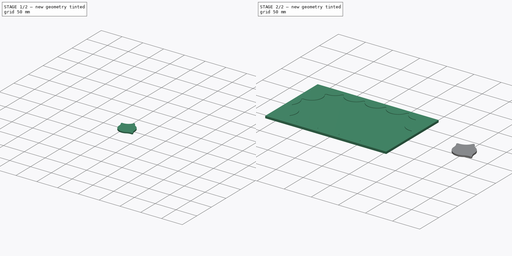
[diagram: build sequence overview — one tinted view per stage of 2, left to right]
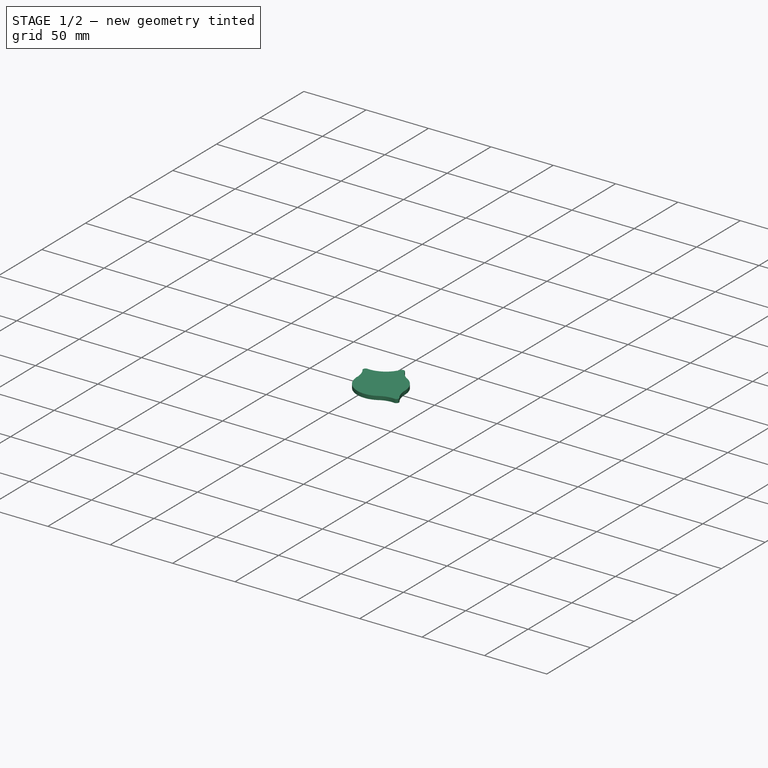
[diagram: stage 1 of 2 — iso view after this stage's code; geometry added in this stage tinted green]
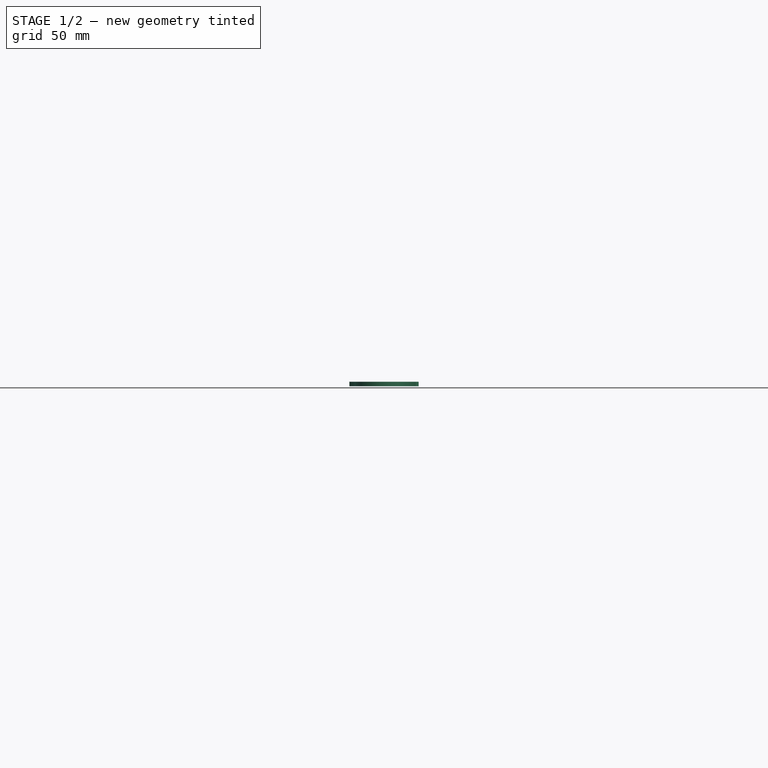
[diagram: stage 1 of 2 — front view after this stage's code; geometry added in this stage tinted green]
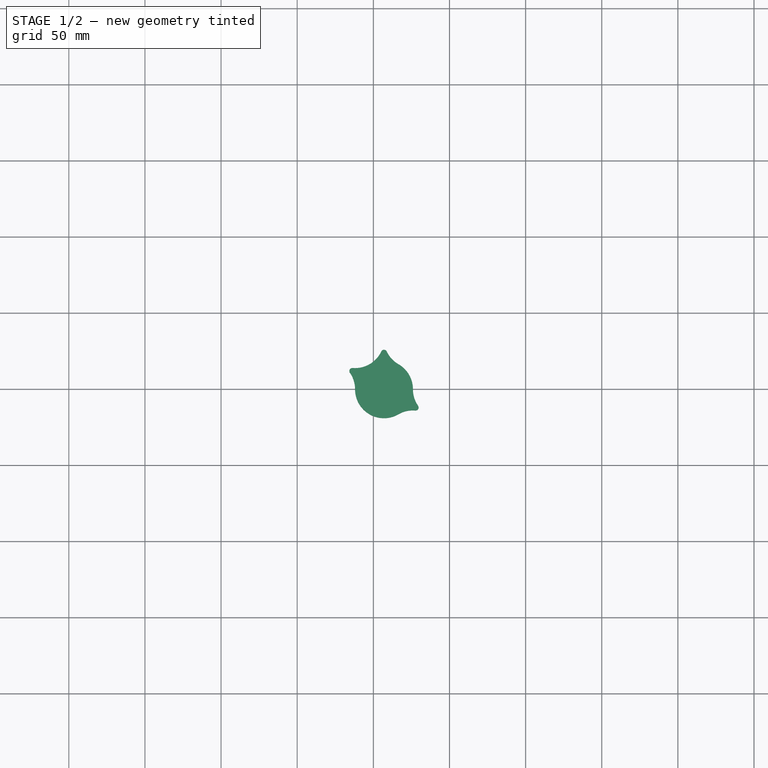
[diagram: stage 1 of 2 — top view after this stage's code; geometry added in this stage tinted green]
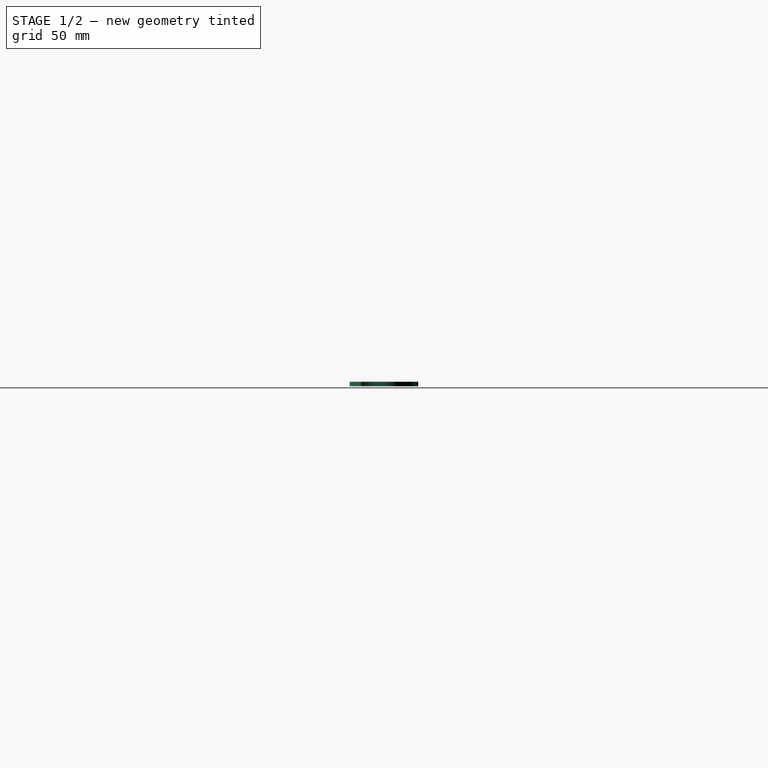
[diagram: stage 1 of 2 — right view after this stage's code; geometry added in this stage tinted green]
FCSTD DOCUMENT  (FreeCAD 2023.131R26244 +5365 (Git))
Label: Kwazy Quilt
License: All rights reserved
LicenseURL: http://en.wikipedia.org/wiki/All_rights_reserved
objects: Sketcher::SketchObject×4, PartDesign::Pad×2, PartDesign::Pocket×2, PartDesign::Body×2, Spreadsheet::Sheet×1
note: 22 computed .brp shape members not serialized (recipe doc carries the construction recipe); baked Part::Feature solids carry a one-line shape summary decoded from their .brp

FEATURE [PartDesign::Body] Body001  label="Board"
  AutoGroupSolids = false
  ClaimAllChildren = false
  ExportMode = 0
  Group = -> [Sketch002,Sketch,Pad,Pocket]
  InvalidShape = false
  Origin = -> Origin001
  Tip = -> Pocket
  TreeRank = 25
  ValidateShape = true
  _ExportChildren = -> [Pad,Pocket]
  _GroupVersion = 1
FEATURE [Sketcher::SketchObject] Sketch003
  ArcFitTolerance = 1e-06
  ExternalBSplineMaxDegree = 5
  ExternalBSplineTolerance = 0.0001
  FullyConstrained = false
  InternalTolerance = 1e-06
  InvalidShape = false
  MakeInternals = false
  MapMode = 2
  TreeRank = 30
  ValidateShape = true
  expr: Constraints[0] = <<Parameters>>.Diameter
  expr: Constraints[10] = <<Parameters>>.Diameter
  expr: Constraints[11] = <<Parameters>>.Diameter
  expr: Constraints[12] = <<Parameters>>.Diameter
  expr: Constraints[257] = <<Parameters>>.Piece_Corner_Diameter
  expr: Constraints[278] = <<Parameters>>.Piece_Corner_Diameter
  expr: Constraints[289] = <<Parameters>>.Piece_Corner_Diameter
  expr: Constraints[316] = <<Parameters>>.Piece_Corner_Diameter
  expr: Constraints[339] = <<Parameters>>.Piece_Corner_Diameter
  expr: Constraints[364] = <<Parameters>>.Piece_Corner_Diameter
  expr: Constraints[460] = <<Parameters>>.Piece_Corner_Diameter
  expr: Constraints[476] = <<Parameters>>.Piece_Corner_Diameter
  expr: Constraints[490] = <<Parameters>>.Piece_Corner_Diameter
  expr: Constraints[504] = <<Parameters>>.Piece_Corner_Diameter
  expr: Constraints[513] = <<Parameters>>.Piece_Corner_Diameter
  expr: Constraints[520] = <<Parameters>>.Piece_Corner_Diameter
  expr: Constraints[7] = <<Parameters>>.Diameter
  expr: Constraints[8] = <<Parameters>>.Diameter
  expr: Constraints[9] = <<Parameters>>.Diameter
  sketch-geometry (198):
    g0: Circle [constr] CenterX=-207 CenterY=116.158 CenterZ=0 NormalX=0 NormalY=0 NormalZ=1 AngleXU=0 Radius=19
    g1: Circle [constr] CenterX=-169 CenterY=116.158 CenterZ=0 NormalX=0 NormalY=0 NormalZ=1 AngleXU=0 Radius=19
    g2: Circle [constr] CenterX=-188 CenterY=83.249 CenterZ=0 NormalX=0 NormalY=0 NormalZ=1 AngleXU=0 Radius=19
    g3: Circle [constr] CenterX=-188 CenterY=149.067 CenterZ=0 NormalX=0 NormalY=0 NormalZ=1 AngleXU=0 Radius=19
    g4: Circle [constr] CenterX=-226 CenterY=83.249 CenterZ=0 NormalX=0 NormalY=0 NormalZ=1 AngleXU=0 Radius=19
    g5: Circle [constr] CenterX=-245 CenterY=116.158 CenterZ=0 NormalX=0 NormalY=0 NormalZ=1 AngleXU=0 Radius=19
    g6: Circle [constr] CenterX=-226 CenterY=149.067 CenterZ=0 NormalX=0 NormalY=0 NormalZ=1 AngleXU=0 Radius=19
    g7: Circle [constr] CenterX=-69 CenterY=115.818 CenterZ=0 NormalX=0 NormalY=0 NormalZ=1 AngleXU=0 Radius=19
    g8: Circle [constr] CenterX=-31 CenterY=115.818 CenterZ=0 NormalX=0 NormalY=0 NormalZ=1 AngleXU=0 Radius=19
    g9: Circle [constr] CenterX=-50 CenterY=82.909 CenterZ=0 NormalX=0 NormalY=0 NormalZ=1 AngleXU=0 Radius=19
    g10: Circle [constr] CenterX=-50 CenterY=148.727 CenterZ=0 NormalX=0 NormalY=0 NormalZ=1 AngleXU=0 Radius=19
    g11: Circle [constr] CenterX=-88 CenterY=82.909 CenterZ=0 NormalX=0 NormalY=0 NormalZ=1 AngleXU=0 Radius=19
    g12: Circle [constr] CenterX=-107 CenterY=115.818 CenterZ=0 NormalX=0 NormalY=0 NormalZ=1 AngleXU=0 Radius=19
    g13: Circle [constr] CenterX=-88 CenterY=148.727 CenterZ=0 NormalX=0 NormalY=0 NormalZ=1 AngleXU=0 Radius=19
    g14: Circle [constr] CenterX=69 CenterY=115.818 CenterZ=0 NormalX=0 NormalY=0 NormalZ=1 AngleXU=0 Radius=19
    g15: Circle [constr] CenterX=107 CenterY=115.818 CenterZ=0 NormalX=0 NormalY=0 NormalZ=1 AngleXU=0 Radius=19
    g16: Circle [constr] CenterX=88 CenterY=82.909 CenterZ=0 NormalX=0 NormalY=0 NormalZ=1 AngleXU=0 Radius=19
    g17: Circle [constr] CenterX=88 CenterY=148.727 CenterZ=0 NormalX=0 NormalY=0 NormalZ=1 AngleXU=0 Radius=19
    g18: Circle [constr] CenterX=50 CenterY=82.909 CenterZ=0 NormalX=0 NormalY=0 NormalZ=1 AngleXU=0 Radius=19
    g19: Circle [constr] CenterX=31 CenterY=115.818 CenterZ=0 NormalX=0 NormalY=0 NormalZ=1 AngleXU=0 Radius=19
    g20: Circle [constr] CenterX=50 CenterY=148.727 CenterZ=0 NormalX=0 NormalY=0 NormalZ=1 AngleXU=0 Radius=19
    g21: Circle [constr] CenterX=207 CenterY=115.818 CenterZ=0 NormalX=0 NormalY=0 NormalZ=1 AngleXU=0 Radius=19
    g22: Circle [constr] CenterX=245 CenterY=115.818 CenterZ=0 NormalX=0 NormalY=0 NormalZ=1 AngleXU=0 Radius=19
    g23: Circle [constr] CenterX=226 CenterY=82.909 CenterZ=0 NormalX=0 NormalY=0 NormalZ=1 AngleXU=0 Radius=19
    g24: Circle [constr] CenterX=226 CenterY=148.727 CenterZ=0 NormalX=0 NormalY=0 NormalZ=1 AngleXU=0 Radius=19
    g25: Circle [constr] CenterX=188 CenterY=82.909 CenterZ=0 NormalX=0 NormalY=0 NormalZ=1 AngleXU=0 Radius=19
    g26: Circle [constr] CenterX=169 CenterY=115.818 CenterZ=0 NormalX=0 NormalY=0 NormalZ=1 AngleXU=0 Radius=19
    g27: Circle [constr] CenterX=188 CenterY=148.727 CenterZ=0 NormalX=0 NormalY=0 NormalZ=1 AngleXU=0 Radius=19
    g28: Circle [constr] CenterX=-207 CenterY=0.34 CenterZ=0 NormalX=0 NormalY=0 NormalZ=1 AngleXU=0 Radius=19
    g29: Circle [constr] CenterX=-169 CenterY=0.34 CenterZ=0 NormalX=0 NormalY=0 NormalZ=1 AngleXU=0 Radius=19
    g30: Circle [constr] CenterX=-188 CenterY=-32.569 CenterZ=0 NormalX=0 NormalY=0 NormalZ=1 AngleXU=0 Radius=19
    g31: Circle [constr] CenterX=-188 CenterY=33.249 CenterZ=0 NormalX=0 NormalY=0 NormalZ=1 AngleXU=0 Radius=19
    g32: Circle [constr] CenterX=-226 CenterY=-32.569 CenterZ=0 NormalX=0 NormalY=0 NormalZ=1 AngleXU=0 Radius=19
    g33: Circle [constr] CenterX=-245 CenterY=0.34 CenterZ=0 NormalX=0 NormalY=0 NormalZ=1 AngleXU=0 Radius=19
    g34: Circle [constr] CenterX=-226 CenterY=33.249 CenterZ=0 NormalX=0 NormalY=0 NormalZ=1 AngleXU=0 Radius=19
    g35: Circle [constr] CenterX=-69 CenterY=-6e-16 CenterZ=0 NormalX=0 NormalY=0 NormalZ=1 AngleXU=0 Radius=19
    g36: Circle [constr] CenterX=-31 CenterY=0 CenterZ=0 NormalX=0 NormalY=0 NormalZ=1 AngleXU=0 Radius=19
    g37: Circle [constr] CenterX=-50 CenterY=-32.909 CenterZ=0 NormalX=0 NormalY=0 NormalZ=1 AngleXU=0 Radius=19
    g38: Circle [constr] CenterX=-50 CenterY=32.909 CenterZ=0 NormalX=0 NormalY=0 NormalZ=1 AngleXU=0 Radius=19
    g39: Circle [constr] CenterX=-88 CenterY=-32.909 CenterZ=0 NormalX=0 NormalY=0 NormalZ=1 AngleXU=0 Radius=19
    g40: Circle [constr] CenterX=-107 CenterY=1.3e-15 CenterZ=0 NormalX=0 NormalY=0 NormalZ=1 AngleXU=0 Radius=19
    g41: Circle [constr] CenterX=-88 CenterY=32.909 CenterZ=0 NormalX=0 NormalY=0 NormalZ=1 AngleXU=0 Radius=19
    g42: Circle [constr] CenterX=69 CenterY=3e-15 CenterZ=0 NormalX=0 NormalY=0 NormalZ=1 AngleXU=0 Radius=19
    g43: Circle [constr] CenterX=107 CenterY=6.1e-15 CenterZ=0 NormalX=0 NormalY=0 NormalZ=1 AngleXU=0 Radius=19
    g44: Circle [constr] CenterX=88 CenterY=-32.909 CenterZ=0 NormalX=0 NormalY=0 NormalZ=1 AngleXU=0 Radius=19
    g45: Circle [constr] CenterX=88 CenterY=32.909 CenterZ=0 NormalX=0 NormalY=0 NormalZ=1 AngleXU=0 Radius=19
    g46: Circle [constr] CenterX=50 CenterY=-32.909 CenterZ=0 NormalX=0 NormalY=0 NormalZ=1 AngleXU=0 Radius=19
    g47: Circle [constr] CenterX=31 CenterY=1.3e-15 CenterZ=0 NormalX=0 NormalY=0 NormalZ=1 AngleXU=0 Radius=19
    g48: Circle [constr] CenterX=50 CenterY=32.909 CenterZ=0 NormalX=0 NormalY=0 NormalZ=1 AngleXU=0 Radius=19
    g49: Circle [constr] CenterX=207 CenterY=-1e-16 CenterZ=0 NormalX=0 NormalY=0 NormalZ=1 AngleXU=0 Radius=19
    g50: Circle [constr] CenterX=245 CenterY=7e-16 CenterZ=0 NormalX=0 NormalY=0 NormalZ=1 AngleXU=0 Radius=19
    g51: Circle [constr] CenterX=226 CenterY=-32.909 CenterZ=0 NormalX=0 NormalY=0 NormalZ=1 AngleXU=0 Radius=19
    g52: Circle [constr] CenterX=226 CenterY=32.909 CenterZ=0 NormalX=0 NormalY=0 NormalZ=1 AngleXU=0 Radius=19
    g53: Circle [constr] CenterX=188 CenterY=-32.909 CenterZ=0 NormalX=0 NormalY=0 NormalZ=1 AngleXU=0 Radius=19
    g54: Circle [constr] CenterX=169 CenterY=0 CenterZ=0 NormalX=0 NormalY=0 NormalZ=1 AngleXU=0 Radius=19
    g55: Circle [constr] CenterX=188 CenterY=32.909 CenterZ=0 NormalX=0 NormalY=0 NormalZ=1 AngleXU=0 Radius=19
    g56: Circle [constr] CenterX=-207 CenterY=-115.478 CenterZ=0 NormalX=0 NormalY=0 NormalZ=1 AngleXU=0 Radius=19
    g57: Circle [constr] CenterX=-169 CenterY=-115.478 CenterZ=0 NormalX=0 NormalY=0 NormalZ=1 AngleXU=0 Radius=19
    g58: Circle [constr] CenterX=-188 CenterY=-148.387 CenterZ=0 NormalX=0 NormalY=0 NormalZ=1 AngleXU=0 Radius=19
    g59: Circle [constr] CenterX=-188 CenterY=-82.569 CenterZ=0 NormalX=0 NormalY=0 NormalZ=1 AngleXU=0 Radius=19
    g60: Circle [constr] CenterX=-226 CenterY=-148.387 CenterZ=0 NormalX=0 NormalY=0 NormalZ=1 AngleXU=0 Radius=19
    g61: Circle [constr] CenterX=-245 CenterY=-115.478 CenterZ=0 NormalX=0 NormalY=0 NormalZ=1 AngleXU=0 Radius=19
    g62: Circle [constr] CenterX=-226 CenterY=-82.569 CenterZ=0 NormalX=0 NormalY=0 NormalZ=1 AngleXU=0 Radius=19
    g63: Circle [constr] CenterX=-69 CenterY=-115.818 CenterZ=0 NormalX=0 NormalY=0 NormalZ=1 AngleXU=0 Radius=19
    g64: Circle [constr] CenterX=-31 CenterY=-115.818 CenterZ=0 NormalX=0 NormalY=0 NormalZ=1 AngleXU=0 Radius=19
    g65: Circle [constr] CenterX=-50 CenterY=-148.727 CenterZ=0 NormalX=0 NormalY=0 NormalZ=1 AngleXU=0 Radius=19
    g66: Circle [constr] CenterX=-50 CenterY=-82.909 CenterZ=0 NormalX=0 NormalY=0 NormalZ=1 AngleXU=0 Radius=19
    g67: Circle [constr] CenterX=-88 CenterY=-148.727 CenterZ=0 NormalX=0 NormalY=0 NormalZ=1 AngleXU=0 Radius=19
    g68: Circle [constr] CenterX=-107 CenterY=-115.818 CenterZ=0 NormalX=0 NormalY=0 NormalZ=1 AngleXU=0 Radius=19
    g69: Circle [constr] CenterX=-88 CenterY=-82.909 CenterZ=0 NormalX=0 NormalY=0 NormalZ=1 AngleXU=0 Radius=19
    g70: Circle [constr] CenterX=69 CenterY=-115.818 CenterZ=0 NormalX=0 NormalY=0 NormalZ=1 AngleXU=0 Radius=19
    g71: Circle [constr] CenterX=107 CenterY=-115.818 CenterZ=0 NormalX=0 NormalY=0 NormalZ=1 AngleXU=0 Radius=19
    g72: Circle [constr] CenterX=88 CenterY=-148.727 CenterZ=0 NormalX=0 NormalY=0 NormalZ=1 AngleXU=0 Radius=19
    g73: Circle [constr] CenterX=88 CenterY=-82.909 CenterZ=0 NormalX=0 NormalY=0 NormalZ=1 AngleXU=0 Radius=19
    g74: Circle [constr] CenterX=50 CenterY=-148.727 CenterZ=0 NormalX=0 NormalY=0 NormalZ=1 AngleXU=0 Radius=19
    g75: Circle [constr] CenterX=31 CenterY=-115.818 CenterZ=0 NormalX=0 NormalY=0 NormalZ=1 AngleXU=0 Radius=19
    g76: Circle [constr] CenterX=50 CenterY=-82.909 CenterZ=0 NormalX=0 NormalY=0 NormalZ=1 AngleXU=0 Radius=19
    g77: Circle [constr] CenterX=207 CenterY=-115.818 CenterZ=0 NormalX=0 NormalY=0 NormalZ=1 AngleXU=0 Radius=19
    g78: Circle [constr] CenterX=245 CenterY=-115.818 CenterZ=0 NormalX=0 NormalY=0 NormalZ=1 AngleXU=0 Radius=19
    g79: Circle [constr] CenterX=226 CenterY=-148.727 CenterZ=0 NormalX=0 NormalY=0 NormalZ=1 AngleXU=0 Radius=19
    g80: Circle [constr] CenterX=226 CenterY=-82.909 CenterZ=0 NormalX=0 NormalY=0 NormalZ=1 AngleXU=0 Radius=19
    g81: Circle [constr] CenterX=188 CenterY=-148.727 CenterZ=0 NormalX=0 NormalY=0 NormalZ=1 AngleXU=0 Radius=19
    g82: Circle [constr] CenterX=169 CenterY=-115.818 CenterZ=0 NormalX=0 NormalY=0 NormalZ=1 AngleXU=0 Radius=19
    g83: Circle [constr] CenterX=188 CenterY=-82.909 CenterZ=0 NormalX=0 NormalY=0 NormalZ=1 AngleXU=0 Radius=19
    g84: ArcOfCircle CenterX=-188 CenterY=149.067 CenterZ=0 NormalX=0 NormalY=0 NormalZ=1 AngleXU=0 Radius=19 StartAngle=3.57716 EndAngle=4.79601
    g85: ArcOfCircle CenterX=-226 CenterY=149.067 CenterZ=0 NormalX=0 NormalY=0 NormalZ=1 AngleXU=0 Radius=19 StartAngle=4.62877 EndAngle=5.84511
    g86: ArcOfCircle CenterX=-245 CenterY=116.158 CenterZ=0 NormalX=0 NormalY=0 NormalZ=1 AngleXU=0 Radius=19 StartAngle=5.67599 EndAngle=6.89041
    g87: ArcOfCircle CenterX=-226 CenterY=83.249 CenterZ=0 NormalX=0 NormalY=0 NormalZ=1 AngleXU=0 Radius=19 StartAngle=0.439956 EndAngle=1.65442
    g88: ArcOfCircle CenterX=-188 CenterY=83.249 CenterZ=0 NormalX=0 NormalY=0 NormalZ=1 AngleXU=0 Radius=19 StartAngle=1.48718 EndAngle=2.70162
    g89: ArcOfCircle CenterX=-169 CenterY=116.158 CenterZ=0 NormalX=0 NormalY=0 NormalZ=1 AngleXU=0 Radius=19 StartAngle=2.53443 EndAngle=3.74882
    g90: ArcOfCircle CenterX=-206.999 CenterY=140.125 CenterZ=0 NormalX=0 NormalY=0 NormalZ=1 AngleXU=0 Radius=2 StartAngle=0.480937 EndAngle=2.68488
    g91: ArcOfCircle CenterX=-227.754 CenterY=128.14 CenterZ=0 NormalX=0 NormalY=0 NormalZ=1 AngleXU=0 Radius=2 StartAngle=1.48717 EndAngle=3.74881
    g92: ArcOfCircle CenterX=-227.754 CenterY=104.176 CenterZ=0 NormalX=0 NormalY=0 NormalZ=1 AngleXU=0 Radius=2 StartAngle=2.53408 EndAngle=4.79601
    g93: ArcOfCircle CenterX=-207 CenterY=92.1932 CenterZ=0 NormalX=0 NormalY=0 NormalZ=1 AngleXU=0 Radius=2 StartAngle=3.58176 EndAngle=5.84322
    g94: ArcOfCircle CenterX=-186.246 CenterY=104.176 CenterZ=0 NormalX=0 NormalY=0 NormalZ=1 AngleXU=0 Radius=2 StartAngle=4.62874 EndAngle=6.89039
    g95: ArcOfCircle CenterX=-186.246 CenterY=128.14 CenterZ=0 NormalX=0 NormalY=0 NormalZ=1 AngleXU=0 Radius=2 StartAngle=5.67541 EndAngle=7.93767
    g96: ArcOfCircle CenterX=226 CenterY=-82.909 CenterZ=0 NormalX=0 NormalY=0 NormalZ=1 AngleXU=0 Radius=19 StartAngle=3.59271 EndAngle=4.18879
    g97: ArcOfCircle CenterX=188 CenterY=-82.909 CenterZ=0 NormalX=0 NormalY=0 NormalZ=1 AngleXU=0 Radius=19 StartAngle=5.23599 EndAngle=5.83826
    g98: ArcOfCircle CenterX=207 CenterY=-115.818 CenterZ=0 NormalX=0 NormalY=0 NormalZ=1 AngleXU=0 Radius=19 StartAngle=2.0944 EndAngle=7.33038
    g99: ArcOfCircle CenterX=207.006 CenterY=-91.8324 CenterZ=0 NormalX=0 NormalY=0 NormalZ=1 AngleXU=0 Radius=2 StartAngle=0.325704 EndAngle=2.75934
    g100: ArcOfCircle CenterX=-50 CenterY=148.727 CenterZ=0 NormalX=0 NormalY=0 NormalZ=1 AngleXU=0 Radius=19 StartAngle=3.58157 EndAngle=4.79601
    g101: ArcOfCircle CenterX=-88 CenterY=148.727 CenterZ=0 NormalX=0 NormalY=0 NormalZ=1 AngleXU=0 Radius=19 StartAngle=4.62877 EndAngle=5.84323
    g102: ArcOfCircle CenterX=-107 CenterY=115.818 CenterZ=0 NormalX=0 NormalY=0 NormalZ=1 AngleXU=0 Radius=19 StartAngle=5.67596 EndAngle=6.89038
    g103: ArcOfCircle CenterX=-31 CenterY=115.818 CenterZ=0 NormalX=0 NormalY=0 NormalZ=1 AngleXU=0 Radius=19 StartAngle=2.5344 EndAngle=3.74881
    g104: ArcOfCircle CenterX=-88 CenterY=82.909 CenterZ=0 NormalX=0 NormalY=0 NormalZ=1 AngleXU=0 Radius=19 StartAngle=1.04718 EndAngle=1.65442
    g105: ArcOfCircle CenterX=-50 CenterY=82.909 CenterZ=0 NormalX=0 NormalY=0 NormalZ=1 AngleXU=0 Radius=19 StartAngle=1.48717 EndAngle=2.09438
    g106: ArcOfCircle CenterX=-69 CenterY=115.818 CenterZ=0 NormalX=0 NormalY=0 NormalZ=1 AngleXU=0 Radius=19 StartAngle=4.18881 EndAngle=5.236
    g107: ArcOfCircle CenterX=-69 CenterY=139.783 CenterZ=0 NormalX=0 NormalY=0 NormalZ=1 AngleXU=0 Radius=2 StartAngle=0.439975 EndAngle=2.70142
    g108: ArcOfCircle CenterX=-89.754 CenterY=127.8 CenterZ=0 NormalX=0 NormalY=0 NormalZ=1 AngleXU=0 Radius=2 StartAngle=1.48717 EndAngle=3.7491
    g109: ArcOfCircle CenterX=-89.754 CenterY=103.836 CenterZ=0 NormalX=0 NormalY=0 NormalZ=1 AngleXU=0 Radius=2 StartAngle=2.53437 EndAngle=4.79605
    g110: ArcOfCircle CenterX=-48.246 CenterY=103.836 CenterZ=0 NormalX=0 NormalY=0 NormalZ=1 AngleXU=0 Radius=2 StartAngle=4.62877 EndAngle=6.89041
    g111: ArcOfCircle CenterX=-48.246 CenterY=127.8 CenterZ=0 NormalX=0 NormalY=0 NormalZ=1 AngleXU=0 Radius=2 StartAngle=5.67567 EndAngle=7.93764
    g112: ArcOfCircle CenterX=88 CenterY=148.727 CenterZ=0 NormalX=0 NormalY=0 NormalZ=1 AngleXU=0 Radius=19 StartAngle=3.58155 EndAngle=4.79601
    g113: ArcOfCircle CenterX=50 CenterY=148.727 CenterZ=0 NormalX=0 NormalY=0 NormalZ=1 AngleXU=0 Radius=19 StartAngle=4.62877 EndAngle=5.84323
    g114: ArcOfCircle CenterX=31 CenterY=115.818 CenterZ=0 NormalX=0 NormalY=0 NormalZ=1 AngleXU=0 Radius=19 StartAngle=5.67599 EndAngle=6.89041
    g115: ArcOfCircle CenterX=50 CenterY=82.909 CenterZ=0 NormalX=0 NormalY=0 NormalZ=1 AngleXU=0 Radius=19 StartAngle=1.04718 EndAngle=1.65442
    g116: ArcOfCircle CenterX=107 CenterY=115.818 CenterZ=0 NormalX=0 NormalY=0 NormalZ=1 AngleXU=0 Radius=19 StartAngle=2.53437 EndAngle=3.14159
    g117: ArcOfCircle CenterX=69 CenterY=115.818 CenterZ=0 NormalX=0 NormalY=0 NormalZ=1 AngleXU=0 Radius=19 StartAngle=4.18881 EndAngle=6.28318
    g118: ArcOfCircle CenterX=69 CenterY=139.783 CenterZ=0 NormalX=0 NormalY=0 NormalZ=1 AngleXU=0 Radius=2 StartAngle=0.440173 EndAngle=2.70142
    g119: ArcOfCircle CenterX=48.246 CenterY=127.8 CenterZ=0 NormalX=0 NormalY=0 NormalZ=1 AngleXU=0 Radius=2 StartAngle=1.48717 EndAngle=3.74882
    g120: ArcOfCircle CenterX=48.246 CenterY=103.836 CenterZ=0 NormalX=0 NormalY=0 NormalZ=1 AngleXU=0 Radius=2 StartAngle=2.53409 EndAngle=4.79601
    g121: ArcOfCircle CenterX=89.754 CenterY=127.8 CenterZ=0 NormalX=0 NormalY=0 NormalZ=1 AngleXU=0 Radius=2 StartAngle=5.67596 EndAngle=7.93761
    g122: ArcOfCircle CenterX=226 CenterY=148.727 CenterZ=0 NormalX=0 NormalY=0 NormalZ=1 AngleXU=0 Radius=19 StartAngle=3.58157 EndAngle=4.79601
    g123: ArcOfCircle CenterX=188 CenterY=148.727 CenterZ=0 NormalX=0 NormalY=0 NormalZ=1 AngleXU=0 Radius=19 StartAngle=4.62877 EndAngle=5.84323
    g124: ArcOfCircle CenterX=245 CenterY=115.818 CenterZ=0 NormalX=0 NormalY=0 NormalZ=1 AngleXU=0 Radius=19 StartAngle=2.53437 EndAngle=3.14159
    g125: ArcOfCircle CenterX=169 CenterY=115.818 CenterZ=0 NormalX=0 NormalY=0 NormalZ=1 AngleXU=0 Radius=19 StartAngle=6.28319 EndAngle=6.89041
    g126: ArcOfCircle CenterX=207 CenterY=115.818 CenterZ=0 NormalX=0 NormalY=0 NormalZ=1 AngleXU=0 Radius=19 StartAngle=3.14159 EndAngle=6.28319
    g127: ArcOfCircle CenterX=207 CenterY=139.783 CenterZ=0 NormalX=0 NormalY=0 NormalZ=1 AngleXU=0 Radius=2 StartAngle=0.439974 EndAngle=2.70142
    g128: ArcOfCircle CenterX=186.246 CenterY=127.8 CenterZ=0 NormalX=0 NormalY=0 NormalZ=1 AngleXU=0 Radius=2 StartAngle=1.48717 EndAngle=3.74882
    g129: ArcOfCircle CenterX=227.754 CenterY=127.8 CenterZ=0 NormalX=0 NormalY=0 NormalZ=1 AngleXU=0 Radius=2 StartAngle=5.67596 EndAngle=7.93764
    g130: ArcOfCircle CenterX=-226 CenterY=33.249 CenterZ=0 NormalX=0 NormalY=0 NormalZ=1 AngleXU=0 Radius=19 StartAngle=4.62917 EndAngle=5.84323
    g131: ArcOfCircle CenterX=-188 CenterY=-32.569 CenterZ=0 NormalX=0 NormalY=0 NormalZ=1 AngleXU=0 Radius=19 StartAngle=1.48718 EndAngle=2.70162
    g132: ArcOfCircle CenterX=-169 CenterY=0.34 CenterZ=0 NormalX=0 NormalY=0 NormalZ=1 AngleXU=0 Radius=19 StartAngle=3.14159 EndAngle=3.74881
    g133: ArcOfCircle CenterX=-226 CenterY=-32.569 CenterZ=0 NormalX=0 NormalY=0 NormalZ=1 AngleXU=0 Radius=19 StartAngle=0.439975 EndAngle=1.04716
    g134: ArcOfCircle CenterX=-245 CenterY=0.34 CenterZ=0 NormalX=0 NormalY=0 NormalZ=1 AngleXU=0 Radius=19 StartAngle=6.28319 EndAngle=6.88998
    g135: ArcOfCircle CenterX=-188 CenterY=33.249 CenterZ=0 NormalX=0 NormalY=0 NormalZ=1 AngleXU=0 Radius=19 StartAngle=3.58152 EndAngle=4.18879
    g136: ArcOfCircle CenterX=-207 CenterY=0.34 CenterZ=0 NormalX=0 NormalY=0 NormalZ=1 AngleXU=0 Radius=19 StartAngle=6.28318 EndAngle=7.33038
    g137: ArcOfCircle CenterX=-207 CenterY=0.34 CenterZ=0 NormalX=0 NormalY=0 NormalZ=1 AngleXU=0 Radius=19 StartAngle=3.14159 EndAngle=4.18883
    g138: ArcOfCircle CenterX=-207 CenterY=24.3047 CenterZ=0 NormalX=0 NormalY=0 NormalZ=1 AngleXU=0 Radius=2 StartAngle=0.440417 EndAngle=2.70142
    g139: ArcOfCircle CenterX=-227.754 CenterY=12.3224 CenterZ=0 NormalX=0 NormalY=0 NormalZ=1 AngleXU=0 Radius=2 StartAngle=1.48329 EndAngle=3.75293
    g140: ArcOfCircle CenterX=-207 CenterY=-23.6247 CenterZ=0 NormalX=0 NormalY=0 NormalZ=1 AngleXU=0 Radius=2 StartAngle=3.58157 EndAngle=5.84319
    g141: ArcOfCircle CenterX=-186.246 CenterY=-11.6423 CenterZ=0 NormalX=0 NormalY=0 NormalZ=1 AngleXU=0 Radius=2 StartAngle=4.62873 EndAngle=6.8904
    g142: ArcOfCircle CenterX=-88 CenterY=32.909 CenterZ=0 NormalX=0 NormalY=0 NormalZ=1 AngleXU=0 Radius=19 StartAngle=4.62825 EndAngle=5.84111
    g143: ArcOfCircle CenterX=-50 CenterY=32.909 CenterZ=0 NormalX=0 NormalY=0 NormalZ=1 AngleXU=0 Radius=19 StartAngle=3.58367 EndAngle=4.79601
    g144: ArcOfCircle CenterX=-107 CenterY=1.3e-15 CenterZ=0 NormalX=0 NormalY=0 NormalZ=1 AngleXU=0 Radius=19 StartAngle=6.28319 EndAngle=6.89378
    g145: ArcOfCircle CenterX=-31 CenterY=0 CenterZ=0 NormalX=0 NormalY=0 NormalZ=1 AngleXU=0 Radius=19 StartAngle=2.53438 EndAngle=3.14162
    g146: ArcOfCircle CenterX=-88 CenterY=-32.909 CenterZ=0 NormalX=0 NormalY=0 NormalZ=1 AngleXU=0 Radius=19 StartAngle=0.439976 EndAngle=1.04718
    g147: ArcOfCircle CenterX=-50 CenterY=-32.909 CenterZ=0 NormalX=0 NormalY=0 NormalZ=1 AngleXU=0 Radius=19 StartAngle=2.09439 EndAngle=2.70162
    g148: ArcOfCircle CenterX=-69 CenterY=-6e-16 CenterZ=0 NormalX=0 NormalY=0 NormalZ=1 AngleXU=0 Radius=19 StartAngle=5.236 EndAngle=6.28316
    g149: ArcOfCircle CenterX=-69 CenterY=-6e-16 CenterZ=0 NormalX=0 NormalY=0 NormalZ=1 AngleXU=0 Radius=19 StartAngle=3.14159 EndAngle=4.18881
    g150: ArcOfCircle CenterX=50 CenterY=32.909 CenterZ=0 NormalX=0 NormalY=0 NormalZ=1 AngleXU=0 Radius=19 StartAngle=5.23599 EndAngle=5.84177
    g151: ArcOfCircle CenterX=88 CenterY=32.909 CenterZ=0 NormalX=0 NormalY=0 NormalZ=1 AngleXU=0 Radius=19 StartAngle=3.58368 EndAngle=4.18955
    g152: ArcOfCircle CenterX=107 CenterY=6.1e-15 CenterZ=0 NormalX=0 NormalY=0 NormalZ=1 AngleXU=0 Radius=19 StartAngle=3.14083 EndAngle=3.7488
    g153: ArcOfCircle CenterX=88 CenterY=-32.909 CenterZ=0 NormalX=0 NormalY=0 NormalZ=1 AngleXU=0 Radius=19 StartAngle=1.48717 EndAngle=2.0905
    g154: ArcOfCircle CenterX=31 CenterY=1.3e-15 CenterZ=0 NormalX=0 NormalY=0 NormalZ=1 AngleXU=0 Radius=19 StartAngle=5.67596 EndAngle=6.28319
    g155: ArcOfCircle CenterX=50 CenterY=-32.909 CenterZ=0 NormalX=0 NormalY=0 NormalZ=1 AngleXU=0 Radius=19 StartAngle=1.0433 EndAngle=1.65442
    g156: ArcOfCircle CenterX=69 CenterY=3e-15 CenterZ=0 NormalX=0 NormalY=0 NormalZ=1 AngleXU=0 Radius=19.0003 StartAngle=4.19269 EndAngle=5.23988
    g157: ArcOfCircle CenterX=69 CenterY=3e-15 CenterZ=0 NormalX=0 NormalY=0 NormalZ=1 AngleXU=0 Radius=19 StartAngle=2.0944 EndAngle=3.14159
    g158: ArcOfCircle CenterX=69 CenterY=3e-15 CenterZ=0 NormalX=0 NormalY=0 NormalZ=1 AngleXU=0 Radius=19 StartAngle=0.000758913 EndAngle=1.04644
    g159: ArcOfCircle CenterX=188 CenterY=32.909 CenterZ=0 NormalX=0 NormalY=0 NormalZ=1 AngleXU=0 Radius=19 StartAngle=4.62877 EndAngle=5.84166
    g160: ArcOfCircle CenterX=169 CenterY=0 CenterZ=0 NormalX=0 NormalY=0 NormalZ=1 AngleXU=0 Radius=19 StartAngle=6.25067 EndAngle=6.8904
    g161: ArcOfCircle CenterX=226 CenterY=32.909 CenterZ=0 NormalX=0 NormalY=0 NormalZ=1 AngleXU=0 Radius=19 StartAngle=3.58311 EndAngle=4.15778
    g162: ArcOfCircle CenterX=245 CenterY=7e-16 CenterZ=0 NormalX=0 NormalY=0 NormalZ=1 AngleXU=0 Radius=19 StartAngle=3.1726 EndAngle=3.74881
    g163: ArcOfCircle CenterX=226 CenterY=-32.909 CenterZ=0 NormalX=0 NormalY=0 NormalZ=1 AngleXU=0 Radius=19 StartAngle=1.48717 EndAngle=2.12691
    g164: ArcOfCircle CenterX=207 CenterY=-1e-16 CenterZ=0 NormalX=0 NormalY=0 NormalZ=1 AngleXU=0 Radius=19.0201 StartAngle=3.17408 EndAngle=5.2035
    g165: ArcOfCircle CenterX=207 CenterY=-1e-16 CenterZ=0 NormalX=0 NormalY=0 NormalZ=1 AngleXU=0 Radius=19.0183 StartAngle=6.25221 EndAngle=7.36136
    g166: ArcOfCircle CenterX=-169 CenterY=-115.478 CenterZ=0 NormalX=0 NormalY=0 NormalZ=1 AngleXU=0 Radius=19 StartAngle=2.55347 EndAngle=3.14159
    g167: ArcOfCircle CenterX=-188 CenterY=-82.569 CenterZ=0 NormalX=0 NormalY=0 NormalZ=1 AngleXU=0 Radius=19 StartAngle=4.18879 EndAngle=4.78088
    g168: ArcOfCircle CenterX=-226 CenterY=-82.569 CenterZ=0 NormalX=0 NormalY=0 NormalZ=1 AngleXU=0 Radius=19 StartAngle=4.62877 EndAngle=5.23599
    g169: ArcOfCircle CenterX=-245 CenterY=-115.478 CenterZ=0 NormalX=0 NormalY=0 NormalZ=1 AngleXU=0 Radius=19 StartAngle=1.1383e-07 EndAngle=0.607233
    g170: ArcOfCircle CenterX=-207 CenterY=-115.478 CenterZ=0 NormalX=0 NormalY=0 NormalZ=1 AngleXU=0 Radius=19 StartAngle=3.14159 EndAngle=6.28319
    g171: ArcOfCircle CenterX=-207 CenterY=-115.478 CenterZ=0 NormalX=0 NormalY=0 NormalZ=1 AngleXU=0 Radius=19 StartAngle=1.0472 EndAngle=2.0944
    g172: ArcOfCircle CenterX=-88 CenterY=-82.909 CenterZ=0 NormalX=0 NormalY=0 NormalZ=1 AngleXU=0 Radius=19 StartAngle=5.23599 EndAngle=5.84313
    g173: ArcOfCircle CenterX=-50 CenterY=-82.909 CenterZ=0 NormalX=0 NormalY=0 NormalZ=1 AngleXU=0 Radius=19 StartAngle=3.58115 EndAngle=4.18879
    g174: ArcOfCircle CenterX=-88 CenterY=-148.727 CenterZ=0 NormalX=0 NormalY=0 NormalZ=1 AngleXU=0 Radius=19 StartAngle=0.439976 EndAngle=1.0472
    g175: ArcOfCircle CenterX=-50 CenterY=-148.727 CenterZ=0 NormalX=0 NormalY=0 NormalZ=1 AngleXU=0 Radius=19 StartAngle=2.0944 EndAngle=2.70161
    g176: ArcOfCircle CenterX=-69 CenterY=-115.818 CenterZ=0 NormalX=0 NormalY=0 NormalZ=1 AngleXU=0 Radius=19 StartAngle=2.09439 EndAngle=4.18879
    g177: ArcOfCircle CenterX=-69 CenterY=-115.818 CenterZ=0 NormalX=0 NormalY=0 NormalZ=1 AngleXU=0 Radius=19 StartAngle=5.23599 EndAngle=7.33038
    g178: ArcOfCircle CenterX=88 CenterY=-82.909 CenterZ=0 NormalX=0 NormalY=0 NormalZ=1 AngleXU=0 Radius=19 StartAngle=3.58157 EndAngle=4.79601
    g179: ArcOfCircle CenterX=50 CenterY=-82.909 CenterZ=0 NormalX=0 NormalY=0 NormalZ=1 AngleXU=0 Radius=19 StartAngle=5.23599 EndAngle=5.84321
    g180: ArcOfCircle CenterX=107 CenterY=-115.818 CenterZ=0 NormalX=0 NormalY=0 NormalZ=1 AngleXU=0 Radius=19 StartAngle=2.53437 EndAngle=3.14159
    g181: ArcOfCircle CenterX=69 CenterY=-115.818 CenterZ=0 NormalX=0 NormalY=0 NormalZ=1 AngleXU=0 Radius=19 StartAngle=2.0944 EndAngle=6.28318
    g182: ArcOfCircle CenterX=-69 CenterY=23.9658 CenterZ=0 NormalX=0 NormalY=0 NormalZ=1 AngleXU=0 Radius=2 StartAngle=0.419532 EndAngle=2.72206
    g183: ArcOfCircle CenterX=-89.7555 CenterY=11.9825 CenterZ=0 NormalX=0 NormalY=0 NormalZ=1 AngleXU=0 Radius=2 StartAngle=1.49136 EndAngle=3.71722
    g184: ArcOfCircle CenterX=-48.246 CenterY=11.9823 CenterZ=0 NormalX=0 NormalY=0 NormalZ=1 AngleXU=0 Radius=2 StartAngle=5.67587 EndAngle=7.9376
    g185: ArcOfCircle CenterX=-69 CenterY=-23.9647 CenterZ=0 NormalX=0 NormalY=0 NormalZ=1 AngleXU=0 Radius=2 StartAngle=3.58157 EndAngle=5.84321
    g186: ArcOfCircle CenterX=69.0001 CenterY=23.9655 CenterZ=0 NormalX=0 NormalY=0 NormalZ=1 AngleXU=0 Radius=2 StartAngle=0.419605 EndAngle=2.71564
    g187: ArcOfCircle CenterX=48.246 CenterY=-11.9823 CenterZ=0 NormalX=0 NormalY=0 NormalZ=1 AngleXU=0 Radius=2 StartAngle=2.53437 EndAngle=4.79602
    g188: ArcOfCircle CenterX=89.754 CenterY=-11.9823 CenterZ=0 NormalX=0 NormalY=0 NormalZ=1 AngleXU=0 Radius=2 StartAngle=4.62876 EndAngle=6.8905
    g189: ArcOfCircle CenterX=207 CenterY=23.9653 CenterZ=0 NormalX=0 NormalY=0 NormalZ=1 AngleXU=0 Radius=2 StartAngle=0.425029 EndAngle=2.71656
    g190: ArcOfCircle CenterX=186.246 CenterY=11.9823 CenterZ=0 NormalX=0 NormalY=0 NormalZ=1 AngleXU=0 Radius=2 StartAngle=1.48717 EndAngle=3.74887
    g191: ArcOfCircle CenterX=227.754 CenterY=-11.9823 CenterZ=0 NormalX=0 NormalY=0 NormalZ=1 AngleXU=0 Radius=2 StartAngle=4.62877 EndAngle=6.89041
    g192: ArcOfCircle CenterX=-186.139 CenterY=-103.444 CenterZ=0 NormalX=0 NormalY=0 NormalZ=1 AngleXU=0 Radius=2 StartAngle=5.44083 EndAngle=8.13811
    g193: ArcOfCircle CenterX=-227.754 CenterY=-103.496 CenterZ=0 NormalX=0 NormalY=0 NormalZ=1 AngleXU=0 Radius=2 StartAngle=1.48714 EndAngle=3.74871
    g194: ArcOfCircle CenterX=-69 CenterY=-91.8532 CenterZ=0 NormalX=0 NormalY=0 NormalZ=1 AngleXU=0 Radius=2 StartAngle=0.443916 EndAngle=2.70237
    g195: ArcOfCircle CenterX=-69 CenterY=-139.783 CenterZ=0 NormalX=0 NormalY=0 NormalZ=1 AngleXU=0 Radius=2 StartAngle=3.58157 EndAngle=5.84325
    g196: ArcOfCircle CenterX=69 CenterY=-91.8532 CenterZ=0 NormalX=0 NormalY=0 NormalZ=1 AngleXU=0 Radius=2 StartAngle=0.439999 EndAngle=2.70159
    g197: ArcOfCircle CenterX=89.754 CenterY=-103.836 CenterZ=0 NormalX=0 NormalY=0 NormalZ=1 AngleXU=0 Radius=2 StartAngle=5.67596 EndAngle=7.9376
  constraints (527):
    c: Diameter(g0) = 38
    c: Equal(g0,g3)
    c: Equal(g0,g1)
    c: Equal(g0,g2)
    c: Equal(g0,g4)
    c: Equal(g0,g5)
    c: Equal(g0,g6)
    c: Distance(g0,g3) = 38
    c: Distance(g0,g1) = 38
    c: Distance(g0,g2) = 38
    c: Distance(g0,g4) = 38
    c: Distance(g0,g5) = 38
    c: Distance(g0,g6) = 38
    c: Tangent(g3,g6)
    c: Tangent(g6,g5)
    c: Tangent(g5,g4)
    c: Tangent(g4,g2)
    c: Tangent(g2,g1)
    c: DistanceY(g3,g6) = 0
    c: Equal(g0,g7) = 38
    c: Equal(g7,g10)
    c: Equal(g7,g8)
    c: Equal(g7,g9)
    c: Equal(g7,g11)
    c: Equal(g7,g12)
    c: Equal(g7,g13)
    c: Distance(g7,g10) = 38
    c: Distance(g7,g8) = 38
    c: Distance(g7,g9) = 38
    c: Distance(g7,g11) = 38
    c: Distance(g7,g12) = 38
    c: Distance(g7,g13) = 38
    c: Tangent(g10,g13)
    c: Tangent(g13,g12)
    c: Tangent(g12,g11)
    c: Tangent(g11,g9)
    c: Tangent(g9,g8)
    c: DistanceY(g10,g13) = 0
    c: Equal(g0,g14) = 38
    c: Equal(g14,g17)
    c: Equal(g14,g15)
    c: Equal(g14,g16)
    c: Equal(g14,g18)
    c: Equal(g14,g19)
    c: Equal(g14,g20)
    c: Distance(g14,g17) = 38
    c: Distance(g14,g15) = 38
    c: Distance(g14,g16) = 38
    c: Distance(g14,g18) = 38
    c: Distance(g14,g19) = 38
    c: Distance(g14,g20) = 38
    c: Tangent(g17,g20)
    c: Tangent(g20,g19)
    c: Tangent(g19,g18)
    c: Tangent(g18,g16)
    c: Tangent(g16,g15)
    c: DistanceY(g17,g20) = 0
    c: Equal(g14,g21) = 38
    c: Equal(g21,g24)
    c: Equal(g21,g22)
    c: Equal(g21,g23)
    c: Equal(g21,g25)
    c: Equal(g21,g26)
    c: Equal(g21,g27)
    c: Distance(g21,g24) = 38
    c: Distance(g21,g22) = 38
    c: Distance(g21,g23) = 38
    c: Distance(g21,g25) = 38
    c: Distance(g21,g26) = 38
    c: Distance(g21,g27) = 38
    c: Tangent(g24,g27)
    c: Tangent(g27,g26)
    c: Tangent(g26,g25)
    c: Tangent(g25,g23)
    c: Tangent(g23,g22)
    c: DistanceY(g24,g27) = 0
    c: DistanceY(g13,g3) = 0.34
    c: DistanceY(g10,g20) = 0
    c: DistanceY(g27,g17) = 0
    c: DistanceX(g3,g13) = 100
    c: DistanceX(g10,g20) = 100
    c: DistanceX(g17,g27) = 100
    c: Equal(g0,g28) = 38
    c: Equal(g28,g31)
    c: Equal(g28,g29)
    c: Equal(g28,g30)
    c: Equal(g28,g32)
    c: Equal(g28,g33)
    c: Equal(g28,g34)
    c: Distance(g28,g31) = 38
    c: Distance(g28,g29) = 38
    c: Distance(g28,g30) = 38
    c: Distance(g28,g32) = 38
    c: Distance(g28,g33) = 38
    c: Distance(g28,g34) = 38
    c: Tangent(g31,g34)
    c: Tangent(g34,g33)
    c: Tangent(g33,g32)
    c: Tangent(g32,g30)
    c: Tangent(g30,g29)
    c: DistanceY(g31,g34) = 0
    c: Equal(g28,g35) = 38
    c: Equal(g35,g38)
    c: Equal(g35,g36)
    c: Equal(g35,g37)
    c: Equal(g35,g39)
    c: Equal(g35,g40)
    c: Equal(g35,g41)
    c: Distance(g35,g38) = 38
    c: Distance(g35,g36) = 38
    c: Distance(g35,g37) = 38
    c: Distance(g35,g39) = 38
    c: Distance(g35,g40) = 38
    c: Distance(g35,g41) = 38
    c: Tangent(g38,g41)
    c: Tangent(g41,g40)
    c: Tangent(g40,g39)
    c: Tangent(g39,g37)
    c: Tangent(g37,g36)
    c: DistanceY(g38,g41) = 0
    c: Equal(g28,g42) = 38
    c: Equal(g42,g45)
    c: Equal(g42,g43)
    c: Equal(g42,g44)
    c: Equal(g42,g46)
    c: Equal(g42,g47)
    c: Equal(g42,g48)
    c: Distance(g42,g45) = 38
    c: Distance(g42,g43) = 38
    c: Distance(g42,g44) = 38
    c: Distance(g42,g46) = 38
    c: Distance(g42,g47) = 38
    c: Distance(g42,g48) = 38
    c: Tangent(g45,g48)
    c: Tangent(g48,g47)
    c: Tangent(g47,g46)
    c: Tangent(g46,g44)
    c: Tangent(g44,g43)
    c: DistanceY(g45,g48) = 0
    c: Equal(g42,g49) = 38
    c: Equal(g49,g52)
    c: Equal(g49,g50)
    c: Equal(g49,g51)
    c: Equal(g49,g53)
    c: Equal(g49,g54)
    c: Equal(g49,g55)
    c: Distance(g49,g52) = 38
    c: Distance(g49,g50) = 38
    c: Distance(g49,g51) = 38
    c: Distance(g49,g53) = 38
    c: Distance(g49,g54) = 38
    c: Distance(g49,g55) = 38
    c: Tangent(g52,g55)
    c: Tangent(g55,g54)
    c: Tangent(g54,g53)
    c: Tangent(g53,g51)
    c: Tangent(g51,g50)
    c: DistanceY(g52,g55) = 0
    c: DistanceY(g41,g31) = 0.34
    c: DistanceY(g38,g48) = 0
    c: DistanceY(g55,g45) = 0
    c: DistanceX(g31,g41) = 100
    c: DistanceX(g38,g48) = 100
    c: DistanceX(g45,g55) = 100
    c: Equal(g56,g59)
    c: Equal(g56,g57)
    c: Equal(g56,g58)
    c: Equal(g56,g60)
    c: Equal(g56,g61)
    c: Equal(g56,g62)
    c: Distance(g56,g59) = 38
    c: Distance(g56,g57) = 38
    c: Distance(g56,g58) = 38
    c: Distance(g56,g60) = 38
    c: Distance(g56,g61) = 38
    c: Distance(g56,g62) = 38
    c: Tangent(g59,g62)
    c: Tangent(g62,g61)
    c: Tangent(g61,g60)
    c: Tangent(g60,g58)
    c: Tangent(g58,g57)
    c: DistanceY(g59,g62) = 0
    c: Equal(g56,g63) = 38
    c: Equal(g63,g66)
    c: Equal(g63,g64)
    c: Equal(g63,g65)
    c: Equal(g63,g67)
    c: Equal(g63,g68)
    c: Equal(g63,g69)
    c: Distance(g63,g66) = 38
    c: Distance(g63,g64) = 38
    c: Distance(g63,g65) = 38
    c: Distance(g63,g67) = 38
    c: Distance(g63,g68) = 38
    c: Distance(g63,g69) = 38
    c: Tangent(g66,g69)
    c: Tangent(g69,g68)
    c: Tangent(g68,g67)
    c: Tangent(g67,g65)
    c: Tangent(g65,g64)
    c: DistanceY(g66,g69) = 0
    c: Equal(g56,g70) = 38
    c: Equal(g70,g73)
    c: Equal(g70,g71)
    c: Equal(g70,g72)
    c: Equal(g70,g74)
    c: Equal(g70,g75)
    c: Equal(g70,g76)
    c: Distance(g70,g73) = 38
    c: Distance(g70,g71) = 38
    c: Distance(g70,g72) = 38
    c: Distance(g70,g74) = 38
    c: Distance(g70,g75) = 38
    c: Distance(g70,g76) = 38
    c: Tangent(g73,g76)
    c: Tangent(g76,g75)
    c: Tangent(g75,g74)
    c: Tangent(g74,g72)
    c: Tangent(g72,g71)
    c: DistanceY(g73,g76) = 0
    c: Equal(g70,g77) = 38
    c: Equal(g77,g80)
    c: Equal(g77,g78)
    c: Equal(g77,g79)
    c: Equal(g77,g81)
    c: Equal(g77,g82)
    c: Equal(g77,g83)
    c: Distance(g77,g80) = 38
    c: Distance(g77,g78) = 38
    c: Distance(g77,g79) = 38
    c: Distance(g77,g81) = 38
    c: Distance(g77,g82) = 38
    c: Distance(g77,g83) = 38
    c: Tangent(g80,g83)
    c: Tangent(g83,g82)
    c: Tangent(g82,g81)
    c: Tangent(g81,g79)
    c: Tangent(g79,g78)
    c: DistanceY(g80,g83) = 0
    c: DistanceY(g69,g59) = 0.34
    c: DistanceY(g66,g76) = 0
    c: DistanceY(g83,g73) = 0
    c: DistanceX(g59,g69) = 100
    c: DistanceX(g66,g76) = 100
    c: DistanceX(g73,g83) = 100
    c: DistanceY(g36,g-1) = 0
    c: DistanceX(g38,g-1) = 50
    c: DistanceX(g41,g11) = 0
    c: DistanceX(g39,g69) = 0
    c: DistanceY(g69,g39) = 50
    c: DistanceY(g41,g11) = 50
    c: Coincident(g84,g3)
    c: Coincident(g85,g6)
    c: Coincident(g86,g5)
    c: Coincident(g87,g4)
    c: Coincident(g88,g2)
    c: Coincident(g89,g1)
    c: Radius(g90) = 2
    c: Tangent(g85,g91) = 1.5708
    c: Tangent(g86,g91) = 1.5708
    c: Equal(g90,g91)
    c: Equal(g90,g92)
    c: Coincident(g92,g86)
    c: Equal(g90,g93)
    c: Coincident(g93,g87)
    c: Equal(g90,g94)
    c: Equal(g90,g95)
    c: Coincident(g95,g84)
    c: Coincident(g95,g89)
    c: Coincident(g96,g80)
    c: PointOnObject(g96,g80)
    c: PointOnObject(g96,g77)
    c: Coincident(g97,g83)
    c: Coincident(g98,g77)
    c: Coincident(g98,g97)
    c: Coincident(g98,g96)
    c: Coincident(g99,g96)
    c: Coincident(g99,g97)
    c: Radius(g99) = 2
    c: Coincident(g100,g10)
    c: Coincident(g101,g13)
    c: Coincident(g102,g12)
    c: Coincident(g103,g8)
    c: Coincident(g104,g11)
    c: PointOnObject(g104,g7)
    c: Coincident(g105,g9)
    c: Coincident(g106,g7)
    c: Coincident(g106,g104)
    c: Coincident(g106,g105)
    c: Radius(g107) = 2
    c: Equal(g107,g108)
    c: Equal(g107,g109)
    c: Tangent(g105,g110) = 1.5708
    c: Tangent(g103,g110) = 1.5708
    c: Equal(g107,g110)
    c: Equal(g107,g111)
    c: Coincident(g111,g100)
    c: PointOnObject(g103,g8)
    c: Coincident(g111,g103)
    c: PointOnObject(g101,g13)
    c: Coincident(g107,g101)
    c: Coincident(g107,g100)
    c: PointOnObject(g102,g12)
    c: Coincident(g108,g101)
    c: Coincident(g108,g102)
    c: Coincident(g109,g102)
    c: Coincident(g109,g104)
    c: Coincident(g112,g17)
    c: Coincident(g113,g20)
    c: Coincident(g114,g19)
    c: Coincident(g115,g18)
    c: PointOnObject(g115,g14)
    c: Coincident(g116,g15)
    c: Coincident(g117,g14)
    c: Coincident(g117,g116)
    c: Coincident(g117,g115)
    c: Radius(g118) = 2
    c: PointOnObject(g113,g20)
    c: PointOnObject(g112,g17)
    c: Coincident(g118,g113)
    c: Coincident(g118,g112)
    c: Equal(g118,g119)
    c: Coincident(g119,g113)
    c: Coincident(g119,g114)
    c: Equal(g118,g120)
    c: Coincident(g120,g115)
    c: Coincident(g120,g114)
    c: PointOnObject(g114,g19)
    c: Equal(g118,g121)
    c: Coincident(g121,g112)
    c: Coincident(g121,g116)
    c: Coincident(g122,g24)
    c: Coincident(g123,g27)
    c: Coincident(g124,g22)
    c: PointOnObject(g124,g21)
    c: Coincident(g125,g26)
    c: Coincident(g126,g21)
    c: Coincident(g126,g125)
    c: Coincident(g126,g124)
    c: Radius(g127) = 2
    c: PointOnObject(g123,g27)
    c: Coincident(g127,g123)
    c: Coincident(g127,g122)
    c: Equal(g127,g128)
    c: Coincident(g128,g123)
    c: Coincident(g128,g125)
    c: Equal(g127,g129)
    c: PointOnObject(g122,g24)
    c: Coincident(g129,g122)
    c: Coincident(g129,g124)
    c: Coincident(g130,g34)
    c: Coincident(g131,g30)
    c: Coincident(g132,g29)
    c: PointOnObject(g132,g28)
    c: Coincident(g133,g32)
    c: PointOnObject(g133,g28)
    c: Coincident(g134,g33)
    c: Coincident(g135,g31)
    c: Coincident(g136,g28)
    c: Coincident(g136,g135)
    c: Coincident(g136,g132)
    c: Coincident(g137,g136)
    c: Coincident(g137,g134)
    c: Coincident(g137,g133)
    c: Radius(g138) = 2
    c: PointOnObject(g130,g34)
    c: Coincident(g138,g130)
    c: Coincident(g138,g135)
    c: Equal(g138,g139)
    c: Coincident(g139,g130)
    c: Coincident(g139,g134)
    c: Equal(g138,g140)
    c: Coincident(g140,g131)
    c: Coincident(g140,g133)
    c: Equal(g138,g141)
    c: PointOnObject(g131,g30)
    c: Coincident(g141,g132)
    c: Coincident(g141,g131)
    c: Coincident(g142,g41)
    c: Coincident(g143,g38)
    c: Coincident(g144,g40)
    c: Coincident(g145,g36)
    c: Coincident(g146,g39)
    c: Coincident(g147,g37)
    c: Coincident(g148,g35)
    c: Coincident(g148,g145)
    c: Coincident(g148,g147)
    c: Coincident(g149,g148)
    c: Coincident(g149,g144)
    c: Coincident(g149,g146)
    c: Coincident(g150,g48)
    c: PointOnObject(g150,g42)
    c: Coincident(g151,g45)
    c: Coincident(g152,g43)
    c: Coincident(g153,g44)
    c: Coincident(g154,g47)
    c: Coincident(g155,g46)
    c: Coincident(g156,g42)
    c: Coincident(g156,g155)
    c: Coincident(g156,g153)
    c: Coincident(g157,g156)
    c: Coincident(g157,g150)
    c: Coincident(g157,g154)
    c: Coincident(g158,g156)
    c: Coincident(g158,g151)
    c: Coincident(g158,g152)
    c: Coincident(g159,g55)
    c: Coincident(g160,g54)
    c: Coincident(g161,g52)
    c: Coincident(g162,g50)
    c: Coincident(g163,g51)
    c: Coincident(g164,g49)
    c: Coincident(g164,g160)
    c: Coincident(g164,g163)
    c: Coincident(g165,g164)
    c: Coincident(g165,g161)
    c: Coincident(g165,g162)
    c: Coincident(g166,g57)
    c: PointOnObject(g166,g56)
    c: Coincident(g167,g59)
    c: PointOnObject(g167,g56)
    c: Coincident(g168,g62)
    c: Coincident(g169,g61)
    c: Coincident(g170,g56)
    c: Coincident(g170,g169)
    c: Coincident(g170,g166)
    c: Coincident(g171,g170)
    c: Coincident(g171,g168)
    c: Coincident(g171,g167)
    c: Coincident(g172,g69)
    c: PointOnObject(g172,g63)
    c: Coincident(g173,g66)
    c: PointOnObject(g173,g63)
    c: Coincident(g174,g67)
    c: Coincident(g175,g65)
    c: Coincident(g176,g63)
    c: Coincident(g176,g172)
    c: Coincident(g176,g174)
    c: Coincident(g177,g176)
    c: Coincident(g177,g173)
    c: Coincident(g177,g175)
    c: Coincident(g178,g73)
    c: Coincident(g179,g76)
    c: Coincident(g180,g71)
    c: Coincident(g181,g70)
    c: Coincident(g181,g179)
    c: Coincident(g181,g180)
    c: PointOnObject(g85,g6)
    c: Coincident(g90,g85)
    c: Coincident(g90,g84)
    c: PointOnObject(g84,g3)
    c: PointOnObject(g89,g1)
    c: PointOnObject(g88,g2)
    c: Coincident(g94,g89)
    c: Coincident(g94,g88)
    c: PointOnObject(g87,g4)
    c: Coincident(g93,g88)
    c: PointOnObject(g86,g5)
    c: Coincident(g92,g87)
    c: PointOnObject(g100,g10)
    c: Radius(g182) = 2
    c: Equal(g182,g183)
    c: PointOnObject(g142,g41)
    c: Coincident(g182,g142)
    c: Coincident(g182,g143)
    c: PointOnObject(g143,g38)
    c: Coincident(g183,g142)
    c: Coincident(g183,g144)
    c: PointOnObject(g144,g40)
    c: Tangent(g143,g184) = 1.5708
    c: Equal(g182,g184)
    c: Tangent(g146,g185) = 1.5708
    c: Tangent(g147,g185) = 1.5708
    c: Equal(g182,g185)
    c: PointOnObject(g145,g36)
    c: Coincident(g184,g145)
    c: Radius(g186) = 2
    c: PointOnObject(g150,g48)
    c: PointOnObject(g151,g45)
    c: Coincident(g186,g150)
    c: Coincident(g186,g151)
    c: Equal(g186,g187)
    c: Equal(g186,g188)
    c: PointOnObject(g152,g43)
    c: PointOnObject(g153,g44)
    c: Coincident(g188,g152)
    c: Coincident(g153,g188)
    c: PointOnObject(g155,g46)
    c: Coincident(g187,g154)
    c: Coincident(g187,g155)
    c: Radius(g189) = 2
    c: PointOnObject(g159,g55)
    c: PointOnObject(g161,g52)
    c: Coincident(g189,g159)
    c: Coincident(g189,g161)
    c: Equal(g189,g190)
    c: Equal(g189,g191)
    c: PointOnObject(g160,g54)
    c: Coincident(g190,g159)
    c: Coincident(g190,g160)
    c: PointOnObject(g162,g50)
    c: PointOnObject(g163,g51)
    c: Coincident(g191,g162)
    c: Coincident(g191,g163)
    c: Radius(g192) = 2
    c: Equal(g192,g193)
    c: PointOnObject(g166,g57)
    c: PointOnObject(g167,g59)
    c: Coincident(g192,g167)
    c: Coincident(g192,g166)
    c: Tangent(g59,g57)
    c: Coincident(g193,g168)
    c: Coincident(g193,g169)
    c: Radius(g194) = 2
    c: Coincident(g194,g172)
    c: Coincident(g194,g173)
    c: Equal(g194,g195)
    c: Coincident(g195,g174)
    c: Coincident(g195,g175)
    c: Tangent(g178,g197) = 1.5708
    c: Radius(g196) = 2
    c: Equal(g196,g197)
    c: PointOnObject(g179,g76)
    c: PointOnObject(g178,g73)
    c: Coincident(g196,g179)
    c: Coincident(g196,g178)
    c: Coincident(g197,g180)
FEATURE [PartDesign::Pad] Pad001
  AddSubType = 0
  AlongSketchNormal = false
  AutoTaperInnerAngle = true
  CheckUpToFaceLimits = true
  ClaimChildren = false
  Direction = (0,0,1)
  Fit = 0
  FitJoin = 0
  InnerFit = 0
  InnerFitJoin = 0
  InvalidShape = false
  Length = 3
  Length2 = 100
  Linearize = true
  NewSolid = false
  Profile = -> Sketch003
  Suppress = false
  TaperInnerAngle = 0
  TaperInnerAngleRev = 0
  TreeRank = 31
  Type = 0
  ValidateShape = true
  _ProfileBasedVersion = 1
  expr: Length = <<Parameters>>.Thickness
FEATURE [Sketcher::SketchObject] Sketch004
  ArcFitTolerance = 1e-06
  AttachmentSupport = -> [XY_Plane]
  ExternalBSplineMaxDegree = 5
  ExternalBSplineTolerance = 0.0001
  FullyConstrained = false
  InternalTolerance = 1e-06
  InvalidShape = false
  MakeInternals = false
  MapMode = 5
  Support = -> [XY_Plane]
  TreeRank = 32
  ValidateShape = true
  sketch-geometry (8):
    g0: LineSegment StartX=169.072 StartY=44.4066 StartZ=0 EndX=255.29 EndY=44.4066 EndZ=0
    g1: LineSegment StartX=255.29 StartY=44.4066 StartZ=0 EndX=255.29 EndY=-40.9229 EndZ=0
    g2: LineSegment StartX=255.29 StartY=-40.9229 StartZ=0 EndX=169.072 EndY=-40.9229 EndZ=0
    g3: LineSegment StartX=169.072 StartY=-40.9229 StartZ=0 EndX=169.072 EndY=44.4066 EndZ=0
    g4: LineSegment StartX=-391.818 StartY=257.709 StartZ=0 EndX=377.902 EndY=257.709 EndZ=0
    g5: LineSegment StartX=377.902 StartY=257.709 StartZ=0 EndX=377.902 EndY=-226.488 EndZ=0
    g6: LineSegment StartX=377.902 StartY=-226.488 StartZ=0 EndX=-391.818 EndY=-226.488 EndZ=0
    g7: LineSegment StartX=-391.818 StartY=-226.488 StartZ=0 EndX=-391.818 EndY=257.709 EndZ=0
  constraints (16):
    c: Coincident(g0,g1)
    c: Coincident(g1,g2)
    c: Coincident(g2,g3)
    c: Coincident(g3,g0)
    c: Horizontal(g0)
    c: Horizontal(g2)
    c: Vertical(g1)
    c: Vertical(g3)
    c: Coincident(g4,g5)
    c: Coincident(g5,g6)
    c: Coincident(g6,g7)
    c: Coincident(g7,g4)
    c: Horizontal(g4)
    c: Horizontal(g6)
    c: Vertical(g5)
    c: Vertical(g7)
FEATURE [PartDesign::Pocket] Pocket001
  AddSubType = 1
  AutoTaperInnerAngle = true
  BaseFeature = -> Pad001
  CheckUpToFaceLimits = true
  ClaimChildren = false
  Fit = 0
  FitJoin = 0
  InnerFit = 0
  InnerFitJoin = 0
  InvalidShape = false
  Length = 100
  Length2 = 100
  Linearize = true
  NewSolid = false
  Profile = -> Sketch004
  Suppress = false
  TaperInnerAngle = 0
  TaperInnerAngleRev = 0
  TreeRank = 33
  Type = 4
  ValidateShape = true
  _ProfileBasedVersion = 1
  _Version = 1
FEATURE [PartDesign::Body] Body  label="Pieces"
  AutoGroupSolids = false
  ClaimAllChildren = false
  ExportMode = 0
  Group = -> [Sketch003,Pad001,Sketch004,Pocket001]
  InvalidShape = false
  Origin = -> Origin
  Tip = -> Pocket001
  TreeRank = 11
  ValidateShape = true
  _ExportChildren = -> [Pad001,Pocket001]
  _GroupVersion = 1
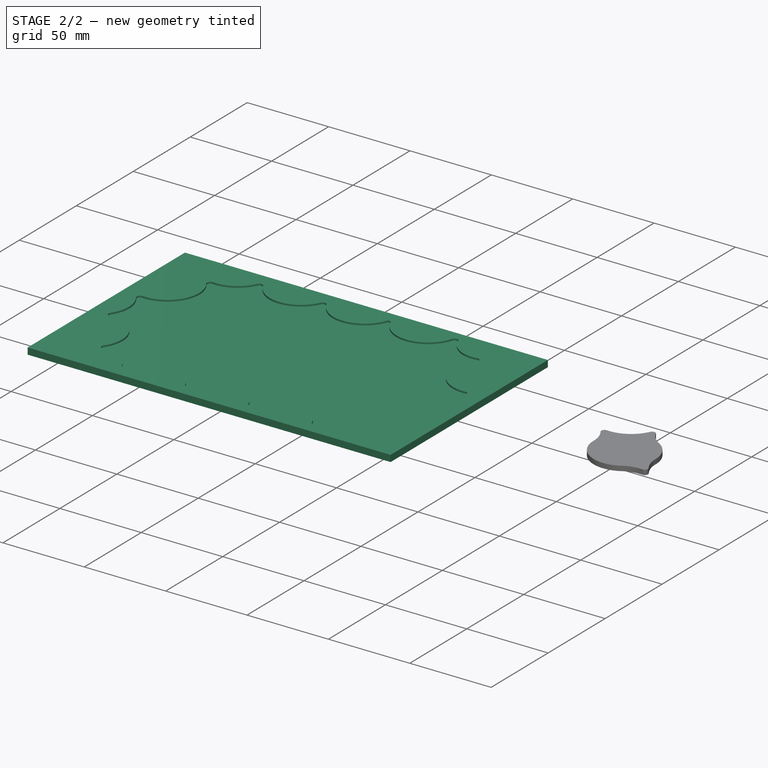
[diagram: stage 2 of 2 — iso view after this stage's code; geometry added in this stage tinted green]
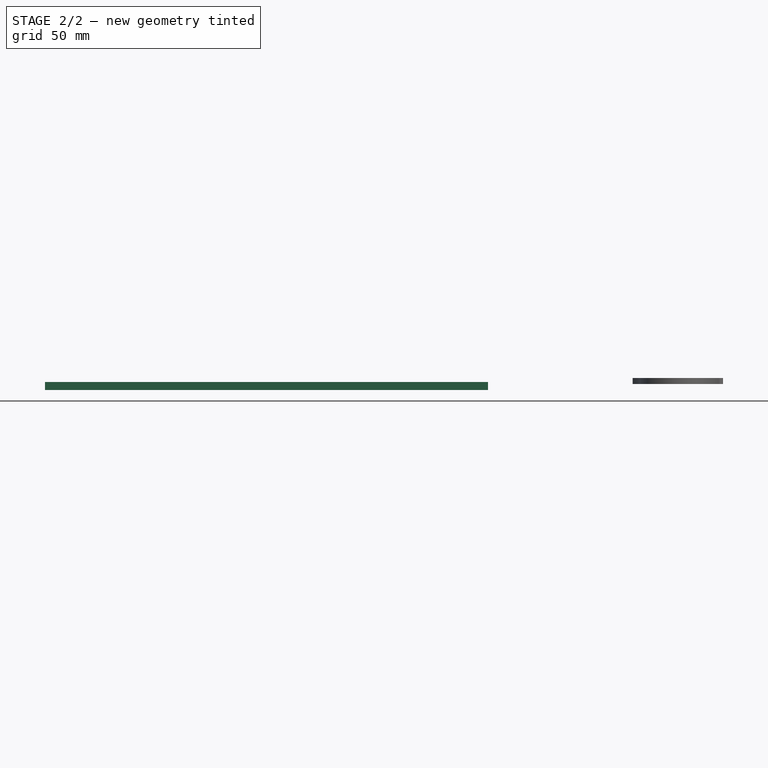
[diagram: stage 2 of 2 — front view after this stage's code; geometry added in this stage tinted green]
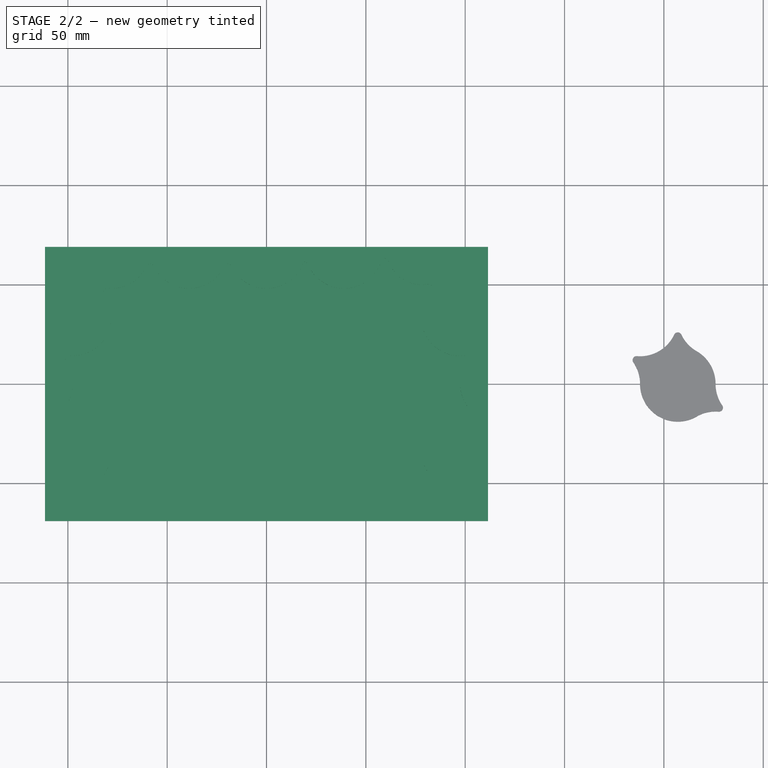
[diagram: stage 2 of 2 — top view after this stage's code; geometry added in this stage tinted green]
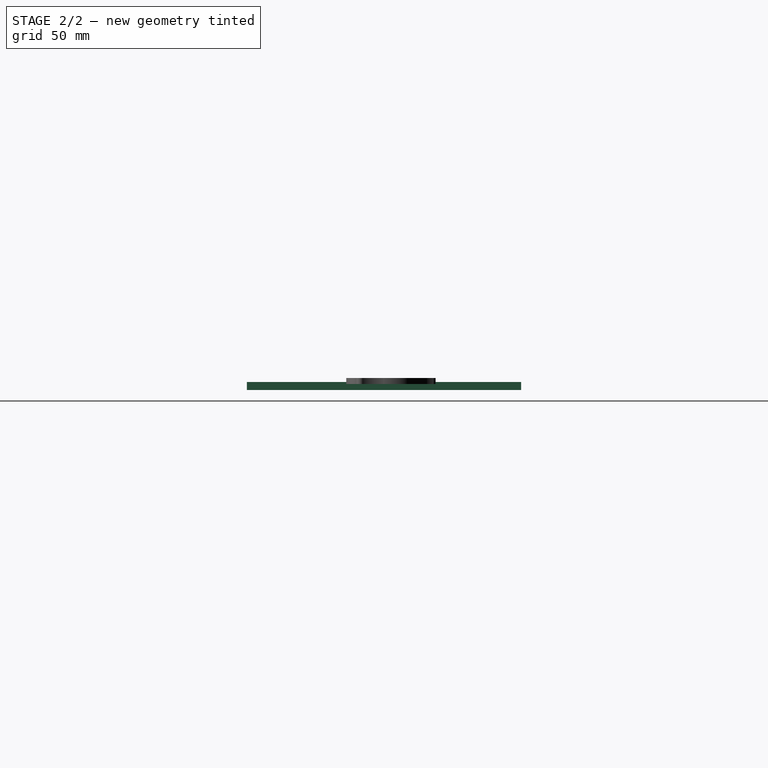
[diagram: stage 2 of 2 — right view after this stage's code; geometry added in this stage tinted green]
FEATURE [Spreadsheet::Sheet] Spreadsheet  label="Parameters"
  PythonMode = false
  ShowCells = 0
  TreeRank = 1
  cells = A1=Thickness; B1(Thickness)=3; A2=Diameter Reference; B2(Diameter)=38; A3=Piece Corner Diameter; B3(Piece_Corner_Diameter)=2; A4=Board Width; B4(Board_Width)=223; A5=Board Length; B5(Board_Height)=138; A6=Board Diameter; B6(Board_Diameter)==Diameter * 39 / 38; A7=Board Corner Diameter; B7(Board_Corner_Diameter)=2; A8=Board Bottom Thickness; B8(Board_Bottom_Thickness)=1
FEATURE [Sketcher::SketchObject] Sketch  label="Board Recess Sketch"
  ArcFitTolerance = 1e-06
  AttachmentSupport = -> [XY_Plane001]
  ExternalBSplineMaxDegree = 5
  ExternalBSplineTolerance = 0.0001
  FullyConstrained = false
  InternalTolerance = 1e-06
  InvalidShape = false
  MakeInternals = false
  MapMode = 5
  Support = -> [XY_Plane001]
  TreeRank = 26
  ValidateShape = true
  expr: Constraints[100] = <<Parameters>>.Board_Diameter
  expr: Constraints[103] = <<Parameters>>.Board_Corner_Diameter
  expr: Constraints[10] = <<Parameters>>.Board_Diameter
  expr: Constraints[11] = <<Parameters>>.Board_Diameter
  expr: Constraints[12] = <<Parameters>>.Board_Diameter
  expr: Constraints[13] = <<Parameters>>.Board_Diameter
  expr: Constraints[24] = <<Parameters>>.Board_Diameter
  expr: Constraints[25] = <<Parameters>>.Board_Diameter
  expr: Constraints[26] = <<Parameters>>.Board_Diameter
  expr: Constraints[27] = <<Parameters>>.Board_Diameter
  expr: Constraints[28] = <<Parameters>>.Board_Diameter
  expr: Constraints[29] = <<Parameters>>.Board_Diameter
  expr: Constraints[30] = <<Parameters>>.Board_Diameter
  expr: Constraints[36] = <<Parameters>>.Board_Diameter / 2
  expr: Constraints[43] = <<Parameters>>.Board_Diameter
  expr: Constraints[44] = <<Parameters>>.Board_Diameter
  expr: Constraints[45] = <<Parameters>>.Board_Diameter
  expr: Constraints[46] = <<Parameters>>.Board_Diameter
  expr: Constraints[47] = <<Parameters>>.Board_Diameter
  expr: Constraints[54] = <<Parameters>>.Board_Diameter
  expr: Constraints[66] = <<Parameters>>.Board_Diameter
  expr: Constraints[67] = <<Parameters>>.Board_Diameter
  expr: Constraints[68] = <<Parameters>>.Board_Diameter
  expr: Constraints[69] = <<Parameters>>.Board_Diameter
  expr: Constraints[70] = <<Parameters>>.Board_Diameter
  expr: Constraints[71] = <<Parameters>>.Board_Diameter
  expr: Constraints[72] = <<Parameters>>.Board_Diameter
  expr: Constraints[73] = <<Parameters>>.Board_Diameter
  expr: Constraints[75] = 0
  expr: Constraints[82] = <<Parameters>>.Board_Diameter
  expr: Constraints[9] = <<Parameters>>.Board_Diameter
  sketch-geometry (61):
    g0: Circle [constr] CenterX=0 CenterY=0 CenterZ=0 NormalX=0 NormalY=0 NormalZ=1 AngleXU=0 Radius=19.5
    g1: Circle [constr] CenterX=39 CenterY=0 CenterZ=0 NormalX=0 NormalY=0 NormalZ=1 AngleXU=0 Radius=19.5
    g2: Circle [constr] CenterX=78 CenterY=0 CenterZ=0 NormalX=0 NormalY=0 NormalZ=1 AngleXU=0 Radius=19.5
    g3: Circle [constr] CenterX=-39 CenterY=0 CenterZ=0 NormalX=0 NormalY=0 NormalZ=1 AngleXU=0 Radius=19.5
    g4: Circle [constr] CenterX=-78 CenterY=0 CenterZ=0 NormalX=0 NormalY=0 NormalZ=1 AngleXU=0 Radius=19.5
    g5: Circle [constr] CenterX=-58.5 CenterY=33.775 CenterZ=0 NormalX=0 NormalY=0 NormalZ=1 AngleXU=0 Radius=19.5
    g6: Circle [constr] CenterX=-19.5 CenterY=33.775 CenterZ=0 NormalX=0 NormalY=0 NormalZ=1 AngleXU=0 Radius=19.5
    g7: Circle [constr] CenterX=19.5 CenterY=33.775 CenterZ=0 NormalX=0 NormalY=0 NormalZ=1 AngleXU=0 Radius=19.5
    g8: Circle [constr] CenterX=58.5 CenterY=33.775 CenterZ=0 NormalX=0 NormalY=0 NormalZ=1 AngleXU=0 Radius=19.5
    g9: Circle [constr] CenterX=-117 CenterY=0 CenterZ=0 NormalX=0 NormalY=0 NormalZ=1 AngleXU=0 Radius=19.5
    g10: Circle [constr] CenterX=117 CenterY=0 CenterZ=0 NormalX=0 NormalY=0 NormalZ=1 AngleXU=0 Radius=19.5
    g11: Circle [constr] CenterX=97.5 CenterY=33.775 CenterZ=0 NormalX=0 NormalY=0 NormalZ=1 AngleXU=0 Radius=19.5
    g12: Circle [constr] CenterX=-97.5 CenterY=33.775 CenterZ=0 NormalX=0 NormalY=0 NormalZ=1 AngleXU=0 Radius=19.5
    g13: Circle [constr] CenterX=-97.5 CenterY=-33.775 CenterZ=0 NormalX=0 NormalY=0 NormalZ=1 AngleXU=0 Radius=19.5
    g14: Circle [constr] CenterX=-58.5 CenterY=-33.775 CenterZ=0 NormalX=0 NormalY=0 NormalZ=1 AngleXU=0 Radius=19.5
    g15: Circle [constr] CenterX=-19.5 CenterY=-33.775 CenterZ=0 NormalX=0 NormalY=0 NormalZ=1 AngleXU=0 Radius=19.5
    g16: Circle [constr] CenterX=19.5 CenterY=-33.775 CenterZ=0 NormalX=0 NormalY=0 NormalZ=1 AngleXU=0 Radius=19.5
    g17: Circle [constr] CenterX=58.5 CenterY=-33.775 CenterZ=0 NormalX=0 NormalY=0 NormalZ=1 AngleXU=0 Radius=19.5
    g18: Circle [constr] CenterX=97.5 CenterY=-33.775 CenterZ=0 NormalX=0 NormalY=0 NormalZ=1 AngleXU=0 Radius=19.5
    g19: Circle [constr] CenterX=-78 CenterY=67.55 CenterZ=0 NormalX=0 NormalY=0 NormalZ=1 AngleXU=0 Radius=19.5
    g20: Circle [constr] CenterX=-39 CenterY=67.55 CenterZ=0 NormalX=0 NormalY=0 NormalZ=1 AngleXU=0 Radius=19.5
    g21: Circle [constr] CenterX=0 CenterY=67.55 CenterZ=0 NormalX=0 NormalY=0 NormalZ=1 AngleXU=0 Radius=19.5
    g22: Circle [constr] CenterX=39 CenterY=67.55 CenterZ=0 NormalX=0 NormalY=0 NormalZ=1 AngleXU=0 Radius=19.5
    g23: Circle [constr] CenterX=78 CenterY=67.55 CenterZ=0 NormalX=0 NormalY=0 NormalZ=1 AngleXU=0 Radius=19.5
    g24: Circle [constr] CenterX=0 CenterY=-67.55 CenterZ=0 NormalX=0 NormalY=0 NormalZ=1 AngleXU=0 Radius=19.5
    g25: Circle [constr] CenterX=-39 CenterY=-67.55 CenterZ=0 NormalX=0 NormalY=0 NormalZ=1 AngleXU=0 Radius=19.5
    g26: Circle [constr] CenterX=-78 CenterY=-67.55 CenterZ=0 NormalX=0 NormalY=0 NormalZ=1 AngleXU=0 Radius=19.5
    g27: Circle [constr] CenterX=39 CenterY=-67.55 CenterZ=0 NormalX=0 NormalY=0 NormalZ=1 AngleXU=0 Radius=19.5
    g28: Circle [constr] CenterX=78 CenterY=-67.55 CenterZ=0 NormalX=0 NormalY=0 NormalZ=1 AngleXU=0 Radius=19.5
    g29: ArcOfCircle CenterX=-117 CenterY=0 CenterZ=0 NormalX=0 NormalY=0 NormalZ=1 AngleXU=0 Radius=19.5 StartAngle=5.67073 EndAngle=6.89564
    g30: ArcOfCircle CenterX=-97.5 CenterY=33.775 CenterZ=0 NormalX=0 NormalY=0 NormalZ=1 AngleXU=0 Radius=19.5 StartAngle=4.62354 EndAngle=6.89564
    g31: ArcOfCircle CenterX=-78 CenterY=67.55 CenterZ=0 NormalX=0 NormalY=0 NormalZ=1 AngleXU=0 Radius=19.5 StartAngle=4.62354 EndAngle=5.84844
    g32: ArcOfCircle CenterX=-39 CenterY=67.55 CenterZ=0 NormalX=0 NormalY=0 NormalZ=1 AngleXU=0 Radius=19.5 StartAngle=3.57634 EndAngle=5.84844
    g33: ArcOfCircle CenterX=0 CenterY=67.55 CenterZ=0 NormalX=0 NormalY=0 NormalZ=1 AngleXU=0 Radius=19.5 StartAngle=3.57634 EndAngle=5.95991
    g34: ArcOfCircle CenterX=39 CenterY=67.55 CenterZ=0 NormalX=0 NormalY=0 NormalZ=1 AngleXU=0 Radius=19.5 StartAngle=3.52806 EndAngle=5.96715
    g35: ArcOfCircle CenterX=78 CenterY=67.55 CenterZ=0 NormalX=0 NormalY=0 NormalZ=1 AngleXU=0 Radius=17.54 StartAngle=3.47176 EndAngle=4.88827
    g36: ArcOfCircle CenterX=97.5 CenterY=33.775 CenterZ=0 NormalX=0 NormalY=0 NormalZ=1 AngleXU=0 Radius=19.6773 StartAngle=2.4066 EndAngle=4.79443
    g37: ArcOfCircle CenterX=117 CenterY=0 CenterZ=0 NormalX=0 NormalY=0 NormalZ=1 AngleXU=0 Radius=19.5 StartAngle=2.53986 EndAngle=3.77635
    g38: ArcOfCircle CenterX=97.5 CenterY=-33.775 CenterZ=0 NormalX=0 NormalY=0 NormalZ=1 AngleXU=0 Radius=19.5 StartAngle=1.47922 EndAngle=3.77749
    g39: ArcOfCircle CenterX=78 CenterY=-67.55 CenterZ=0 NormalX=0 NormalY=0 NormalZ=1 AngleXU=0 Radius=19.5 StartAngle=1.47896 EndAngle=2.81945
    g40: ArcOfCircle CenterX=39 CenterY=-67.55 CenterZ=0 NormalX=0 NormalY=0 NormalZ=1 AngleXU=0 Radius=19.5 StartAngle=0.352076 EndAngle=2.81832
    g41: ArcOfCircle CenterX=0 CenterY=-67.55 CenterZ=0 NormalX=0 NormalY=0 NormalZ=1 AngleXU=0 Radius=19.5 StartAngle=0.352219 EndAngle=2.76663
    g42: ArcOfCircle CenterX=-39 CenterY=-67.55 CenterZ=0 NormalX=0 NormalY=0 NormalZ=1 AngleXU=0 Radius=19.5 StartAngle=0.37496 EndAngle=2.70685
    g43: ArcOfCircle CenterX=-78 CenterY=-67.55 CenterZ=0 NormalX=0 NormalY=0 NormalZ=1 AngleXU=0 Radius=19.5 StartAngle=0.434747 EndAngle=1.65965
    g44: ArcOfCircle CenterX=-97.5 CenterY=-33.775 CenterZ=0 NormalX=0 NormalY=0 NormalZ=1 AngleXU=0 Radius=19.5 StartAngle=5.67073 EndAngle=7.94283
    g45: ArcOfCircle CenterX=-58.5 CenterY=58.4946 CenterZ=0 NormalX=0 NormalY=0 NormalZ=1 AngleXU=0 Radius=2 StartAngle=0.434747 EndAngle=2.70685
    g46: ArcOfCircle CenterX=-79.9078 CenterY=46.1348 CenterZ=0 NormalX=0 NormalY=0 NormalZ=1 AngleXU=0 Radius=2 StartAngle=1.48194 EndAngle=3.75404
    g47: ArcOfCircle CenterX=-99.4078 CenterY=12.3598 CenterZ=0 NormalX=0 NormalY=0 NormalZ=1 AngleXU=0 Radius=2 StartAngle=1.48194 EndAngle=3.75404
    g48: ArcOfCircle CenterX=-99.4078 CenterY=-12.3598 CenterZ=0 NormalX=0 NormalY=0 NormalZ=1 AngleXU=0 Radius=2 StartAngle=2.52914 EndAngle=4.80124
    g49: ArcOfCircle CenterX=-79.9078 CenterY=-46.1348 CenterZ=0 NormalX=0 NormalY=0 NormalZ=1 AngleXU=0 Radius=2 StartAngle=2.52914 EndAngle=4.80124
    g50: ArcOfCircle CenterX=-58.5 CenterY=-58.4946 CenterZ=0 NormalX=0 NormalY=0 NormalZ=1 AngleXU=0 Radius=2 StartAngle=3.57634 EndAngle=5.84844
    g51: ArcOfCircle CenterX=-19.5 CenterY=-58.9372 CenterZ=0 NormalX=0 NormalY=0 NormalZ=1 AngleXU=0 Radius=2 StartAngle=3.96816 EndAngle=5.45662
    g52: ArcOfCircle CenterX=19.7926 CenterY=-59.4884 CenterZ=0 NormalX=0 NormalY=0 NormalZ=1 AngleXU=0 Radius=2 StartAngle=3.87203 EndAngle=5.0793
    g53: ArcOfCircle CenterX=-19.5 CenterY=58.4946 CenterZ=0 NormalX=0 NormalY=0 NormalZ=1 AngleXU=0 Radius=2 StartAngle=0.434747 EndAngle=2.70685
    g54: ArcOfCircle CenterX=19.0857 CenterY=59.4462 CenterZ=0 NormalX=0 NormalY=0 NormalZ=1 AngleXU=0 Radius=2 StartAngle=0.38647 EndAngle=1.8733
    g55: ArcOfCircle CenterX=59.5154 CenterY=61.2151 CenterZ=0 NormalX=0 NormalY=0 NormalZ=1 AngleXU=0 Radius=2 StartAngle=0.330164 EndAngle=3.004
    g56: ArcOfCircle CenterX=81.419 CenterY=48.3114 CenterZ=0 NormalX=0 NormalY=0 NormalZ=1 AngleXU=0 Radius=2 StartAngle=5.54819 EndAngle=8.02986
    g57: ArcOfCircle CenterX=99.2764 CenterY=12.1706 CenterZ=0 NormalX=0 NormalY=0 NormalZ=1 AngleXU=0 Radius=2 StartAngle=5.68145 EndAngle=7.93602
    g58: ArcOfCircle CenterX=99.4661 CenterY=-12.3651 CenterZ=0 NormalX=0 NormalY=0 NormalZ=1 AngleXU=0 Radius=2 StartAngle=4.62081 EndAngle=6.69572
    g59: ArcOfCircle CenterX=79.9718 CenterY=-46.1406 CenterZ=0 NormalX=0 NormalY=0 NormalZ=1 AngleXU=0 Radius=2 StartAngle=4.62055 EndAngle=6.68629
    g60: ArcOfCircle CenterX=58.8038 CenterY=-59.5025 CenterZ=0 NormalX=0 NormalY=0 NormalZ=1 AngleXU=0 Radius=2 StartAngle=3.86436 EndAngle=5.06959
  constraints (156):
    c: Coincident(g0,g-1)
    c: PointOnObject(g1,g-1)
    c: PointOnObject(g2,g-1)
    c: PointOnObject(g3,g-1)
    c: PointOnObject(g4,g-1)
    c: Equal(g0, g1-g4) x4
    c: DistanceX(g1,g2) = 39
    c: DistanceX(g0,g1) = 39
    c: DistanceX(g3,g0) = 39
    c: DistanceX(g4,g3) = 39
    c: Diameter(g0) = 39
    c: PointOnObject(g9,g-1)
    c: PointOnObject(g10,g-1)
    c: Equal(g0,g6)
    c: Equal(g0,g7)
    c: Equal(g0,g8)
    c: Equal(g0,g11)
    c: Equal(g0,g10)
    c: Equal(g0,g5)
    c: Equal(g0,g12)
    c: Equal(g0,g9)
    c: DistanceX(g9,g4) = 39
    c: DistanceX(g2,g10) = 39
    c: DistanceX(g6,g7) = 39
    c: DistanceX(g7,g8) = 39
    c: DistanceX(g8,g11) = 39
    c: DistanceX(g5,g6) = 39
    c: DistanceX(g12,g5) = 39
    c: DistanceY(g12,g5) = 0
    c: DistanceY(g5,g6) = 0
    c: DistanceY(g7,g6) = 0
    c: DistanceY(g7,g8) = 0
    c: DistanceY(g8,g11) = 0
    c: DistanceX(g0,g7) = 19.5
    c: Equal(g0, g15-g18) x4
    c: Equal(g0,g14)
    c: Equal(g0,g13)
    c: DistanceX(g13,g14) = 39
    c: DistanceX(g14,g15) = 39
    c: DistanceX(g15,g16) = 39
    c: DistanceX(g16,g17) = 39
    c: DistanceX(g17,g18) = 39
    c: DistanceY(g13,g14) = 0
    c: DistanceY(g14,g15) = 0
    c: DistanceY(g16,g15) = 0
    c: DistanceY(g17,g16) = 0
    c: DistanceY(g18,g17) = 0
    c: Symmetric(g6,g16,g0)
    c: Distance(g0,g6) = 39
    c: PointOnObject(g21,g-2)
    c: Equal(g0,g21)
    c: Equal(g0,g22)
    c: Equal(g0,g23)
    c: Equal(g0,g20)
    c: Equal(g0,g19)
    c: Equal(g0,g24)
    c: Equal(g0,g27)
    c: Equal(g0,g28)
    c: Equal(g0,g25)
    c: Equal(g0,g26)
    c: DistanceX(g24,g27) = 39
    c: DistanceX(g27,g28) = 39
    c: DistanceX(g25,g24) = 39
    c: DistanceX(g26,g25) = 39
    c: DistanceX(g19,g20) = 39
    c: DistanceX(g20,g21) = 39
    c: DistanceX(g21,g22) = 39
    c: DistanceX(g22,g23) = 39
    c: DistanceY(g19,g20) = 0
    c: DistanceY(g21,g20) = 0
    c: DistanceY(g22,g21) = 0
    c: DistanceY(g23,g22) = 0
    c: DistanceY(g25,g26) = 0
    c: DistanceY(g24,g25) = 0
    c: DistanceY(g24,g27) = 0
    c: DistanceY(g27,g28) = 0
    c: Distance(g6,g20) = 39
    c: Symmetric(g21,g24,g0)
    c: Coincident(g29,g9)
    c: Coincident(g30,g12)
    c: Coincident(g31,g19)
    c: Coincident(g32,g20)
    c: Coincident(g33,g21)
    c: Coincident(g34,g22)
    c: Coincident(g35,g23)
    c: Coincident(g36,g11)
    c: Coincident(g37,g10)
    c: Coincident(g38,g18)
    c: Coincident(g39,g28)
    c: Coincident(g40,g27)
    c: Coincident(g41,g24)
    c: Coincident(g42,g25)
    c: Coincident(g43,g26)
    c: Coincident(g44,g13)
    c: Diameter(g29) = 39
    c: Tangent(g31,g45) = 1.5708
    c: Tangent(g32,g45) = 1.5708
    c: Radius(g45) = 2
    c: Tangent(g30,g46) = 1.5708
    c: Tangent(g31,g46) = 1.5708
    c: Equal(g45,g46)
    c: Tangent(g29,g47) = 1.5708
    c: Tangent(g30,g47) = 1.5708
    c: Equal(g45,g47)
    c: Tangent(g29,g48) = 1.5708
    c: Tangent(g44,g48) = 1.5708
    c: Equal(g45,g48)
    c: Tangent(g44,g49) = 1.5708
    c: Tangent(g43,g49) = 1.5708
    c: Equal(g45,g49)
    c: PointOnObject(g44,g13)
    c: Tangent(g43,g50) = 1.5708
    c: Tangent(g42,g50) = 1.5708
    c: Equal(g45,g50)
    c: PointOnObject(g43,g26)
    c: Equal(g45,g51)
    c: Coincident(g51,g42)
    c: Coincident(g51,g41)
    c: PointOnObject(g42,g25)
    c: PointOnObject(g41,g24)
    c: Tangent(g32,g53) = 1.5708
    c: Tangent(g33,g53) = 1.5708
    c: Equal(g45,g53)
    c: Tangent(g34,g54) = 1.5708
    c: Equal(g53,g54)
    c: PointOnObject(g30,g12)
    c: PointOnObject(g31,g19)
    c: PointOnObject(g32,g20)
    c: Tangent(g35,g55) = 1.5708
    c: Equal(g45,g55)
    c: PointOnObject(g34,g22)
    c: Coincident(g55,g34)
    c: PointOnObject(g33,g21)
    c: Coincident(g54,g33)
    c: Tangent(g35,g56) = 1.5708
    c: Tangent(g36,g56) = 1.5708
    c: Equal(g45,g56)
    c: Tangent(g36,g57) = 1.5708
    c: Tangent(g37,g57) = 1.5708
    c: Equal(g45,g57)
    c: Tangent(g38,g58) = 1.5708
    c: Equal(g45,g58)
    c: PointOnObject(g37,g10)
    c: Coincident(g58,g37)
    c: Tangent(g39,g59) = 1.5708
    c: Equal(g45,g59)
    c: PointOnObject(g38,g18)
    c: Coincident(g59,g38)
    c: Equal(g45,g60)
    c: PointOnObject(g39,g28)
    c: Coincident(g60,g39)
    c: PointOnObject(g40,g27)
    c: Coincident(g60,g40)
    c: Equal(g45,g52)
    c: Coincident(g52,g41)
    c: Coincident(g52,g40)
FEATURE [Sketcher::SketchObject] Sketch002  label="Board Body Sketch"
  ArcFitTolerance = 1e-06
  AttachmentSupport = -> [XY_Plane001]
  ExternalBSplineMaxDegree = 5
  ExternalBSplineTolerance = 0.0001
  FullyConstrained = true
  InternalTolerance = 1e-06
  InvalidShape = false
  MakeInternals = false
  MapMode = 5
  Support = -> [XY_Plane001]
  TreeRank = 27
  ValidateShape = true
  expr: Constraints[10] = <<Parameters>>.Board_Width
  expr: Constraints[11] = <<Parameters>>.Board_Height
  sketch-geometry (5):
    g0: LineSegment StartX=111.5 StartY=-69 StartZ=0 EndX=111.5 EndY=69 EndZ=0
    g1: LineSegment StartX=111.5 StartY=69 StartZ=0 EndX=-111.5 EndY=69 EndZ=0
    g2: LineSegment StartX=-111.5 StartY=69 StartZ=0 EndX=-111.5 EndY=-69 EndZ=0
    g3: LineSegment StartX=-111.5 StartY=-69 StartZ=0 EndX=111.5 EndY=-69 EndZ=0
    g4: GeomPoint [constr] X=0 Y=0 Z=0
  constraints (12):
    c: Coincident(g0,g1)
    c: Coincident(g1,g2)
    c: Coincident(g2,g3)
    c: Coincident(g3,g0)
    c: Horizontal(g1)
    c: Horizontal(g3)
    c: Vertical(g0)
    c: Vertical(g2)
    c: Symmetric(g1,g0,g4)
    c: Coincident(g4,g-1)
    c: DistanceX(g1,g0) = 223
    c: DistanceY(g0,g0) = 138
FEATURE [PartDesign::Pad] Pad  label="Board Body"
  AddSubType = 0
  AlongSketchNormal = false
  AutoTaperInnerAngle = true
  CheckUpToFaceLimits = true
  ClaimChildren = false
  Direction = (0,0,1)
  Fit = 0
  FitJoin = 0
  InnerFit = 0
  InnerFitJoin = 0
  InvalidShape = false
  Length = 3
  Length2 = 1
  Linearize = true
  NewSolid = false
  Profile = -> Sketch002
  Reversed = true
  Suppress = false
  TaperInnerAngle = 0
  TaperInnerAngleRev = 0
  TreeRank = 28
  Type = 4
  ValidateShape = true
  _ProfileBasedVersion = 1
  expr: Length = <<Parameters>>.Thickness
  expr: Length2 = <<Parameters>>.Board_Bottom_Thickness
FEATURE [PartDesign::Pocket] Pocket  label="Board Recess"
  AddSubType = 1
  AutoTaperInnerAngle = true
  BaseFeature = -> Pad
  CheckUpToFaceLimits = true
  ClaimChildren = false
  Fit = 0
  FitJoin = 0
  InnerFit = 0
  InnerFitJoin = 0
  InvalidShape = false
  Length = 3
  Length2 = 100
  Linearize = true
  NewSolid = false
  Profile = -> Sketch
  Reversed = true
  Suppress = false
  TaperInnerAngle = 0
  TaperInnerAngleRev = 0
  TreeRank = 29
  Type = 0
  ValidateShape = true
  _ProfileBasedVersion = 1
  _Version = 1
  expr: Length = <<Parameters>>.Thickness
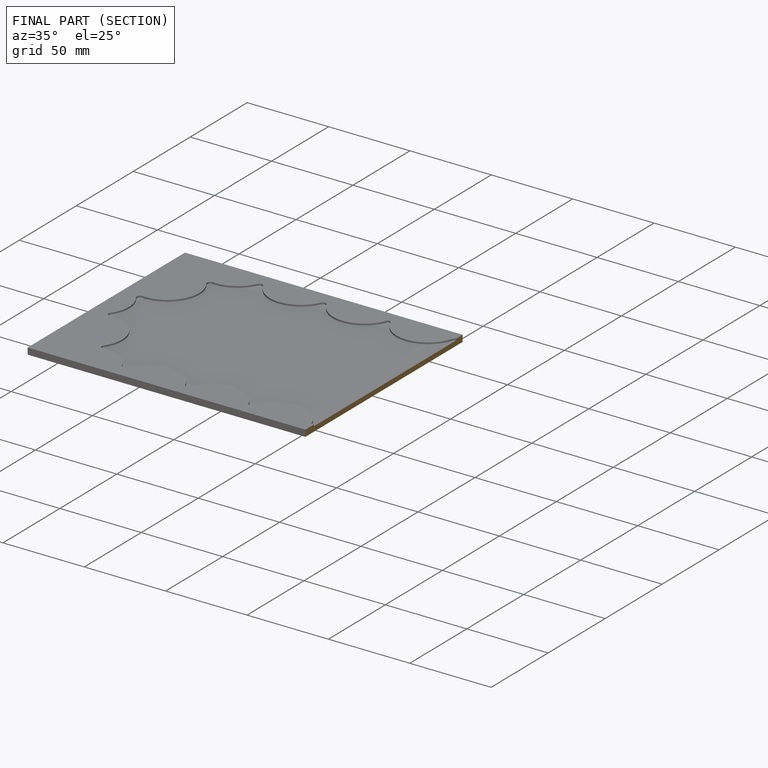
[diagram: finished part — half-section view (interior)]
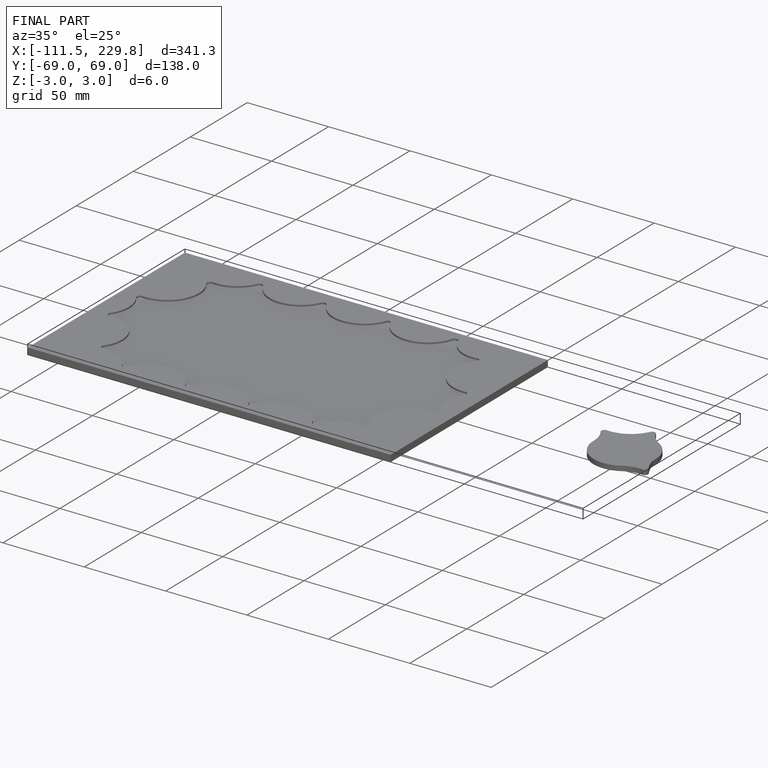
[diagram: finished part — iso view with bounding-box wireframe]
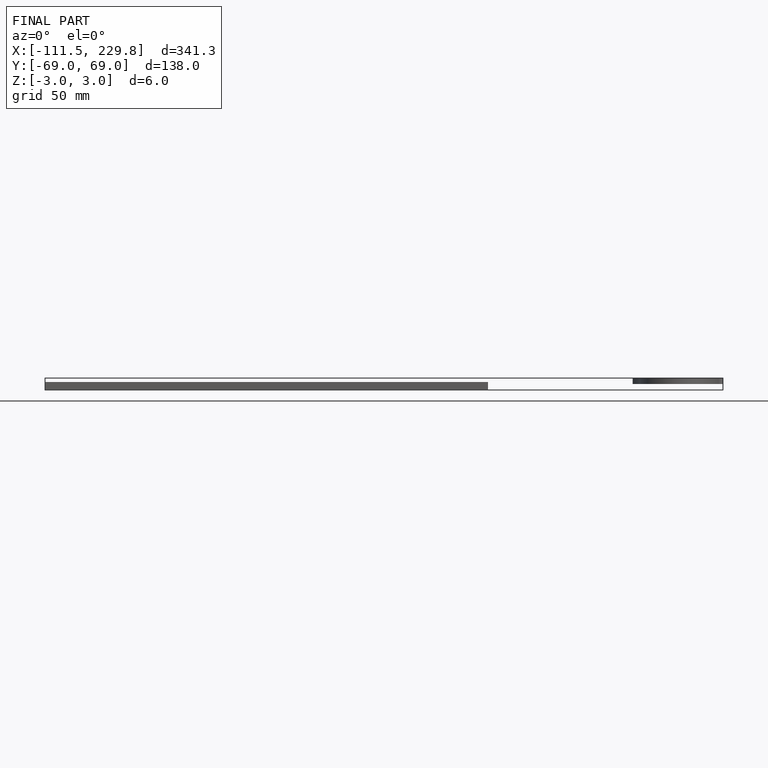
[diagram: finished part — front view with bounding-box wireframe]
